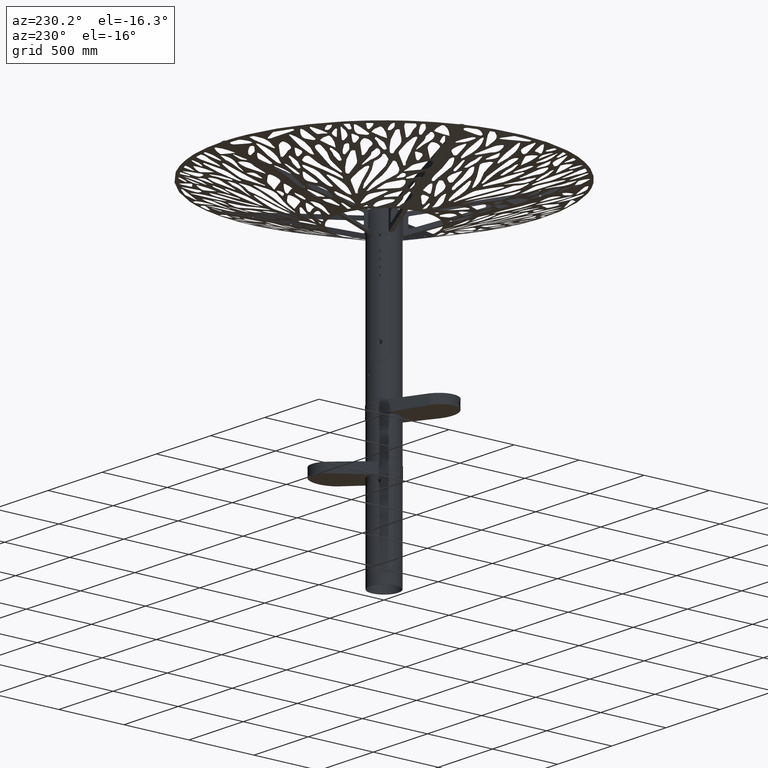
[diagram: clean part render]
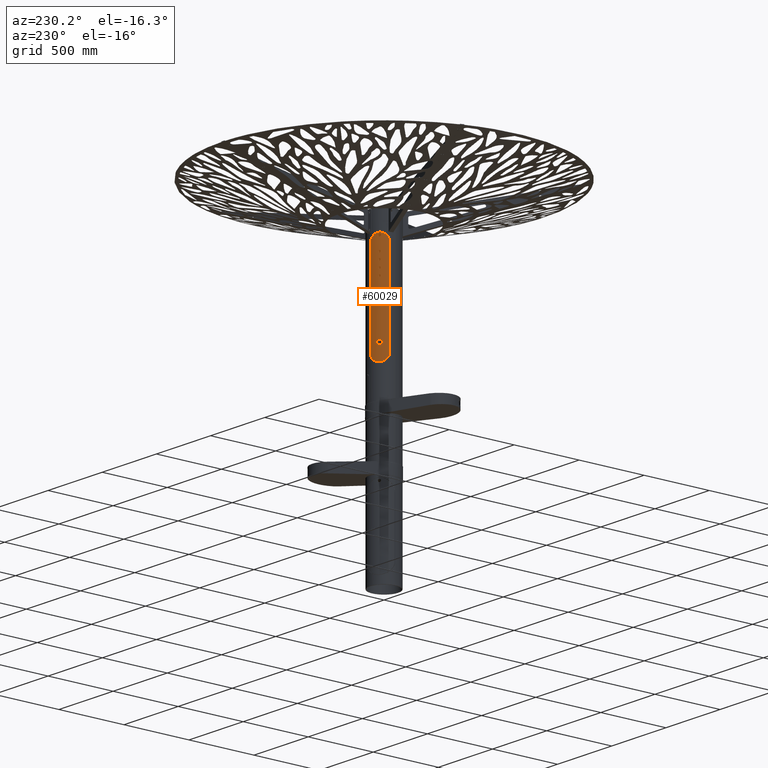
[diagram: same view with one face highlighted and labeled with its STEP entity id]
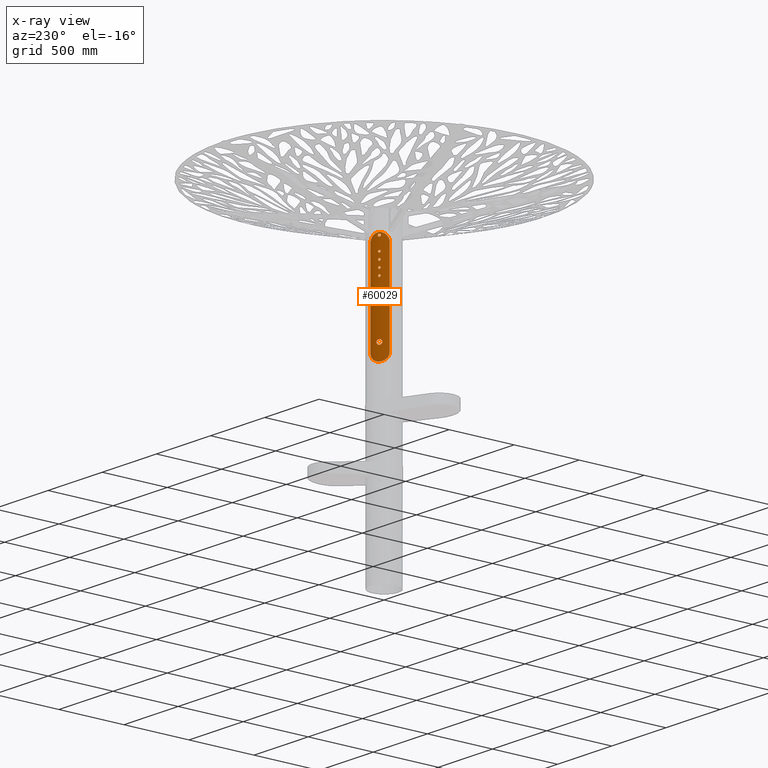
[diagram: x-ray of the same camera — body ghosted, the highlighted face saturated]
A machine part, auxiliary view. The second image highlights one B-rep face of the part: STEP entity #60029.
The next image is the same camera in x-ray: the body ghosted, the highlighted face saturated — about 0% of this face is hidden behind the body in this view.
In plain terms, the highlighted cylindrical surface (edge-blend (fillet) strip) has radius 109.55 mm, axis along (-0, -0, 1).
Its self-contained STEP definition (entity closure, byte-faithful):
#208 = CARTESIAN_POINT ( 'NONE',  ( -2.068872892737632085, -109.5307511698271838, 1892.267683150573021 ) ) ;
#669 = CARTESIAN_POINT ( 'NONE',  ( -0.5286549071183413995, -109.5500000000000114, 1892.000000000000909 ) ) ;
#740 = CARTESIAN_POINT ( 'NONE',  ( 6.364308584506964905, -109.3653606099847906, 1945.124844183423875 ) ) ;
#767 = CARTESIAN_POINT ( 'NONE',  ( -7.729917473456499266, -109.2769724355717784, 1947.922292748879954 ) ) ;
#1203 = CARTESIAN_POINT ( 'NONE',  ( 6.795544112736378040, -109.3391262888995499, 1954.229625215597935 ) ) ;
#1229 = CARTESIAN_POINT ( 'NONE',  ( -7.180137621116314151, -109.3145164233716571, 1953.537598884971658 ) ) ;
#1408 = CARTESIAN_POINT ( 'NONE',  ( -1.307019251254304284E-14, -109.5500000000000114, 1474.500000000000000 ) ) ;
#1445 = CARTESIAN_POINT ( 'NONE',  ( 56.45340360417230130, -93.88464715803591787, 1413.526084720628660 ) ) ;
#1667 = CARTESIAN_POINT ( 'NONE',  ( -1.299671370459436678E-14, -109.5500000000000114, 1958.000000000000000 ) ) ;
#1676 = B_SPLINE_CURVE_WITH_KNOTS ( 'NONE', 3,
 ( #33351, #47955, #55938, #11345, #34280, #47491, #83232, #69567, #41343, #11789, #39954, #91683, #76146, #68652, #77080, #32897, #5197, #76616, #27246, #63440, #4283, #27703, #84618, #61606, #92145, #40416, #62049, #33818, #62511, #90751, #91210, #20222, #69106, #48886, #4740, #26336, #26788, #70029, #55483, #84157, #56404, #19757, #12726, #77553, #5671, #13183, #41808 ),
 .UNSPECIFIED., .F., .F.,
 ( 4, 2, 2, 2, 2, 2, 2, 2, 2, 1, 2, 2, 2, 2, 2, 2, 2, 2, 2, 2, 2, 2, 2, 4 ),
 ( 0.03127399438757747646, 0.03322862219002499506, 0.03420593609124861906, 0.03518324999247224999, 0.03713787779491900531, 0.03811519169614237951, 0.03909250559736576064, 0.04104713339981345271, 0.04202444730103785386, 0.04300176120226224807, 0.04397907510348664228, 0.04495638900471104343, 0.04691101680715854122, 0.04788833070838229011, 0.04886564460960604594, 0.05082027241205223922, 0.05179758631327534280, 0.05277490021449844637, 0.05472952801694574987, 0.05668415581939305337, 0.05766146972061669818, 0.05863878362184035686, 0.06059341142428715382, 0.06254803922673395078 ),
 .UNSPECIFIED. ) ;
#1822 = FACE_OUTER_BOUND ( 'NONE', #74092, .T. ) ;
#1871 = CARTESIAN_POINT ( 'NONE',  ( -3.975354607867367829, -109.4792794551611195, 1474.947955198995032 ) ) ;
#2007 = CARTESIAN_POINT ( 'NONE',  ( -7.948499502516371606, -109.2613120296376081, 2001.046410198630383 ) ) ;
#2130 = CARTESIAN_POINT ( 'NONE',  ( 4.007158968729370940, -109.4775523381361069, 1956.943765464385706 ) ) ;
#2135 = CARTESIAN_POINT ( 'NONE',  ( 7.401492366807461032, -109.2998177693032886, 1903.069382895245326 ) ) ;
#2287 = CARTESIAN_POINT ( 'NONE',  ( 0.000000000000000000, 0.000000000000000000, 0.000000000000000000 ) ) ;
#2336 = CARTESIAN_POINT ( 'NONE',  ( -11.54846880208347137, -108.9405123143592107, 1478.838922302180890 ) ) ;
#2470 = CARTESIAN_POINT ( 'NONE',  ( -6.798312147696000451, -109.3389521543909666, 2004.225025910117893 ) ) ;
#2592 = CARTESIAN_POINT ( 'NONE',  ( 2.571500109574073267, -109.5201035155618001, 1907.579996444109838 ) ) ;
#2801 = CARTESIAN_POINT ( 'NONE',  ( -17.27541660969368920, -108.1793661722975344, 1494.852654696574064 ) ) ;
#2825 = CARTESIAN_POINT ( 'NONE',  ( -29.73041385885469978, -105.4905049924545892, 2160.872680870194472 ) ) ;
#2931 = CARTESIAN_POINT ( 'NONE',  ( 6.931689742192295611, -109.3305513943999898, 2004.002522217572505 ) ) ;
#3066 = CARTESIAN_POINT ( 'NONE',  ( 7.948499502516387594, -109.2613120296375939, 1898.953589801370526 ) ) ;
#3246 = EDGE_LOOP ( 'NONE', ( #14357, #55392 ) ) ;
#3264 = CARTESIAN_POINT ( 'NONE',  ( -16.60981457543951834, -108.2844090766303111, 1497.628586999367599 ) ) ;
#3288 = CARTESIAN_POINT ( 'NONE',  ( -52.73313782213233480, -96.03799718236936656, 2136.289458159742026 ) ) ;
#3302 = CARTESIAN_POINT ( 'NONE',  ( -1.815370652223388559, -109.5352559499902014, 1942.204336773963860 ) ) ;
#3385 = CARTESIAN_POINT ( 'NONE',  ( 1.815370652223335712, -109.5352559499902156, 2007.795663226035686 ) ) ;
#3394 = CARTESIAN_POINT ( 'NONE',  ( -2.821272250157546679, -109.5139334151888875, 1992.509396356958632 ) ) ;
#3514 = CARTESIAN_POINT ( 'NONE',  ( 4.883525341584346258, -109.4419545415967292, 1893.642122107911518 ) ) ;
#3540 = CARTESIAN_POINT ( 'NONE',  ( 44.18607081860528041, -100.2523359372416820, 2148.840586496788092 ) ) ;
#4190 = CARTESIAN_POINT ( 'NONE',  ( -58.79999999999999716, -92.43247535363315137, 2110.000000000000000 ) ) ;
#4283 = CARTESIAN_POINT ( 'NONE',  ( -9.662284529823860879, -109.1231043142876018, 2147.402443738030797 ) ) ;
#4293 = CARTESIAN_POINT ( 'NONE',  ( 2.082796233083969550, -109.5313982431147508, 1992.258218988333283 ) ) ;
#4496 = CARTESIAN_POINT ( 'NONE',  ( 1.156246492327880571, -109.5454102807516250, 1474.528663284997947 ) ) ;
#4514 = CARTESIAN_POINT ( 'NONE',  ( 4.435106804247603840, -109.4618621102411993, 2158.986617712410862 ) ) ;
#4680 = CARTESIAN_POINT ( 'NONE',  ( -6.798312147696000451, -109.3389521543909950, 2054.225025910118347 ) ) ;
#4740 = CARTESIAN_POINT ( 'NONE',  ( -7.955291507959828756, -109.2613718138207588, 2156.094057405923195 ) ) ;
#4963 = CARTESIAN_POINT ( 'NONE',  ( 8.664434982178466527, -109.2069320610248440, 2155.003456060881035 ) ) ;
#5097 = CARTESIAN_POINT ( 'NONE',  ( 15.70392550581551916, -108.4189274671250303, 1484.256241515967076 ) ) ;
#5137 = CARTESIAN_POINT ( 'NONE',  ( -6.364308584506875199, -109.3653606099848048, 2054.875155816576353 ) ) ;
#5175 = VERTEX_POINT ( 'NONE', #82937 ) ;
#5197 = CARTESIAN_POINT ( 'NONE',  ( -8.664434982178306655, -109.2069320610248440, 2144.996543939118510 ) ) ;
#5566 = CARTESIAN_POINT ( 'NONE',  ( 17.47293808061063203, -108.1475944745908038, 1490.868541034227064 ) ) ;
#5611 = CARTESIAN_POINT ( 'NONE',  ( -7.401492330491600491, -109.2998174617979004, 2046.930617111275978 ) ) ;
#5671 = CARTESIAN_POINT ( 'NONE',  ( -1.322473155812293077, -109.5438922094107568, 2159.933687644129805 ) ) ;
#5700 = CARTESIAN_POINT ( 'NONE',  ( -48.27653327615415435, -98.34088988028908318, 1396.418413429089014 ) ) ;
#5805 = CARTESIAN_POINT ( 'NONE',  ( 7.577597027034801869, -109.2876404362681484, 2052.578471419984908 ) ) ;
#5897 = CARTESIAN_POINT ( 'NONE',  ( 7.955291507959987740, -109.2613718138207446, 2143.905942594076350 ) ) ;
#6069 = CARTESIAN_POINT ( 'NONE',  ( -4.010349722868856936, -109.4768155799206113, 2056.927189231789271 ) ) ;
#6163 = CARTESIAN_POINT ( 'NONE',  ( -19.26528303679814513, -107.8592881358860893, 1374.411262592808725 ) ) ;
#6270 = CARTESIAN_POINT ( 'NONE',  ( 7.948499502516358284, -109.2613120296376508, 2048.953589801370072 ) ) ;
#6293 = B_SPLINE_CURVE_WITH_KNOTS ( 'NONE', 3,
 ( #57066, #669, #42935, #7256, #208, #13362, #85741, #41519, #21338, #70209, #13828, #36343, #84810, #86212, #49993, #49072, #27888, #64104, #78209, #12902, #14300, #92333, #35874, #14765, #20398, #35412, #21815, #71617, #6793, #42464, #65037, #77739, #6311, #71145, #28354, #78672, #55660, #41996, #79141, #34937, #70678, #64575, #63154 ),
 .UNSPECIFIED., .F., .F.,
 ( 4, 2, 2, 2, 2, 2, 2, 2, 1, 2, 2, 2, 2, 2, 2, 2, 2, 2, 2, 2, 2, 4 ),
 ( 0.02501462296406650743, 0.02657803882077278482, 0.02735974674912592178, 0.02814145467747906221, 0.02970487053418508633, 0.03126828639089111045, 0.03283170224759712763, 0.03361341017595014663, 0.03439511810430315869, 0.03517682603265616381, 0.03595853396100917587, 0.03752194981771456161, 0.03908536567441994042, 0.04064878153112531922, 0.04143048945947831740, 0.04221219738783130865, 0.04377561324453674296, 0.04533902910124218422, 0.04612073702959489790, 0.04690244495794761159, 0.04846586081465305285, 0.05002927667135848716 ),
 .UNSPECIFIED. ) ;
#6311 = CARTESIAN_POINT ( 'NONE',  ( -5.287755800865171274, -109.4229487171342754, 1906.026476694735493 ) ) ;
#6361 = CARTESIAN_POINT ( 'NONE',  ( 9.999538337287031453, -109.0926749752418630, 2150.659495926059662 ) ) ;
#6535 = CARTESIAN_POINT ( 'NONE',  ( -7.593636865582373829, -109.2866846208429195, 2052.571256877372434 ) ) ;
#6634 = CARTESIAN_POINT ( 'NONE',  ( -42.95207953916403909, -100.7887900298122048, 1389.799377670467948 ) ) ;
#6699 = VERTEX_POINT ( 'NONE', #50703 ) ;
#6793 = CARTESIAN_POINT ( 'NONE',  ( -6.932643504299831783, -109.3304913149851956, 1904.000929413450876 ) ) ;
#7106 = CARTESIAN_POINT ( 'NONE',  ( 15.40733663218379412, -108.4774819043851721, 1373.221131280967484 ) ) ;
#7256 = CARTESIAN_POINT ( 'NONE',  ( -1.815370652223388337, -109.5352559499902299, 1892.204336773965224 ) ) ;
#7261 = EDGE_LOOP ( 'NONE', ( #66275, #85637 ) ) ;
#7573 = CARTESIAN_POINT ( 'NONE',  ( -7.902315589734930867, -109.3320362624550626, 1371.603376054137016 ) ) ;
#7788 = CARTESIAN_POINT ( 'NONE',  ( 2.581360709703115930, -109.5206554324889794, 1942.409763774676321 ) ) ;
#8016 = CARTESIAN_POINT ( 'NONE',  ( -1.968158959371956174, -109.5367932777020314, 2168.775406012173335 ) ) ;
#8251 = CARTESIAN_POINT ( 'NONE',  ( 4.234138293781648521, -109.4683584709336799, 1943.207362024051918 ) ) ;
#8454 = CARTESIAN_POINT ( 'NONE',  ( -2.307309885391656490, -109.5272118727670119, 1509.356867046006982 ) ) ;
#8493 = CARTESIAN_POINT ( 'NONE',  ( 50.92225375794441078, -97.02463370097386530, 1400.353476005578614 ) ) ;
#8709 = CARTESIAN_POINT ( 'NONE',  ( 6.033931905349095182, -109.3843395241008807, 1944.720753034439440 ) ) ;
#8734 = CARTESIAN_POINT ( 'NONE',  ( -7.293363606144660061, -109.3069961684706328, 1953.297805027970981 ) ) ;
#8736 = B_SPLINE_CURVE_WITH_KNOTS ( 'NONE', 3,
 ( #60248, #23596, #24518, #10901, #24978, #23134, #3394, #59320, #59784, #45205, #9516, #39512, #60713, #89409, #17480, #66371, #75250, #66835, #52265, #37666, #16092, #46137, #51804, #2007, #67755, #44745, #74795, #82337, #68220, #2470, #10445, #80483, #80944, #39061, #73405, #32002, #24061, #9058, #52743, #88006, #16558, #81411, #17011 ),
 .UNSPECIFIED., .F., .F.,
 ( 4, 2, 2, 2, 2, 2, 2, 2, 1, 2, 2, 2, 2, 2, 2, 2, 2, 2, 2, 2, 2, 4 ),
 ( 0.02501462296406616742, 0.02657803882077215685, 0.02735974674912515503, 0.02814145467747814974, 0.02970487053418388590, 0.03126828639088962553, 0.03283170224759536515, 0.03361341017594823843, 0.03439511810430110478, 0.03517682603265397806, 0.03595853396100684440, 0.03752194981771193871, 0.03908536567441703302, 0.04064878153112212733, 0.04143048945947529205, 0.04221219738782844288, 0.04377561324453476538, 0.04533902910124108787, 0.04612073702959387095, 0.04690244495794666096, 0.04846586081465223406, 0.05002927667135781409 ),
 .UNSPECIFIED. ) ;
#8964 = CARTESIAN_POINT ( 'NONE',  ( 33.62715662663097760, -104.2645806172999698, 1381.755191104365394 ) ) ;
#9053 = CARTESIAN_POINT ( 'NONE',  ( 4.010349722868810751, -109.4768155799205971, 1993.072810768210957 ) ) ;
#9058 = CARTESIAN_POINT ( 'NONE',  ( -3.308056932641795456, -109.5003104182782465, 2007.288726678773628 ) ) ;
#9144 = EDGE_CURVE ( 'NONE', #48802, #51815, #41941, .T. ) ;
#9178 = CARTESIAN_POINT ( 'NONE',  ( 7.593636865582350737, -109.2866846208429195, 1947.428743122627793 ) ) ;
#9183 = CARTESIAN_POINT ( 'NONE',  ( 1.057735730991005596, -109.5460927480471440, 1892.053025197944180 ) ) ;
#9334 = FACE_BOUND ( 'NONE', #3246, .T. ) ;
#9382 = CARTESIAN_POINT ( 'NONE',  ( -16.38121205727340168, -108.3185447973019393, 1485.816927795159472 ) ) ;
#9516 = CARTESIAN_POINT ( 'NONE',  ( -5.288115950171569324, -109.4229168942128467, 1993.974393261943078 ) ) ;
#9640 = CARTESIAN_POINT ( 'NONE',  ( 7.794437585414392800, -109.2723748285179113, 1951.820997318388208 ) ) ;
#9647 = CARTESIAN_POINT ( 'NONE',  ( 3.547788634155592646, -109.4927817265915309, 1892.824900602773596 ) ) ;
#9720 = CARTESIAN_POINT ( 'NONE',  ( 2.307309885391654269, -109.5272118727670545, 1474.643132953992790 ) ) ;
#9855 = CARTESIAN_POINT ( 'NONE',  ( -17.47293808061065334, -108.1475944745908464, 1493.131458965772936 ) ) ;
#10136 = CARTESIAN_POINT ( 'NONE',  ( 3.937019984607837753, -109.5500000000000114, 2168.800000000000182 ) ) ;
#10317 = CARTESIAN_POINT ( 'NONE',  ( -10.19540193055861543, -109.0755878671803742, 1477.765172316521330 ) ) ;
#10445 = CARTESIAN_POINT ( 'NONE',  ( -6.364308584506876976, -109.3653606099848048, 2004.875155816576807 ) ) ;
#10567 = CARTESIAN_POINT ( 'NONE',  ( 4.007158968729362947, -109.4775523381360927, 2056.943765464385251 ) ) ;
#10799 = CARTESIAN_POINT ( 'NONE',  ( -36.72864690854083847, -103.2124669179420806, 2155.927602834427489 ) ) ;
#10896 = CARTESIAN_POINT ( 'NONE',  ( 6.364308584506964905, -109.3653606099848190, 1995.124844183423875 ) ) ;
#10901 = CARTESIAN_POINT ( 'NONE',  ( -1.815370652223390335, -109.5352559499902299, 1992.204336773964087 ) ) ;
#11255 = CARTESIAN_POINT ( 'NONE',  ( -44.22595884369737007, -100.2346947639459671, 2148.794983482940552 ) ) ;
#11345 = CARTESIAN_POINT ( 'NONE',  ( -2.269569667534867108, -109.5269543383940629, 2140.255502496787813 ) ) ;
#11546 = CARTESIAN_POINT ( 'NONE',  ( 0.5789885709977631301, -109.5499999999999829, 1474.499999999999545 ) ) ;
#11563 = CARTESIAN_POINT ( 'NONE',  ( 4.435071364056611287, -109.4605700341589767, 2141.031290328347950 ) ) ;
#11789 = CARTESIAN_POINT ( 'NONE',  ( -5.824318681042321089, -109.3954012202307808, 2141.864643995837014 ) ) ;
#12021 = CARTESIAN_POINT ( 'NONE',  ( 3.527042214320275093, -109.4936263234990008, 2159.363083935697887 ) ) ;
#12156 = CARTESIAN_POINT ( 'NONE',  ( 16.94040031838618177, -108.2325111737082040, 1487.463099243064335 ) ) ;
#12198 = CARTESIAN_POINT ( 'NONE',  ( -6.932643504299806914, -109.3304913149852098, 2054.000929413450649 ) ) ;
#12487 = CARTESIAN_POINT ( 'NONE',  ( 6.840734947948382327, -109.3364540650338910, 2157.301410104547358 ) ) ;
#12646 = CARTESIAN_POINT ( 'NONE',  ( -6.025810189145818896, -109.3847728136995272, 1944.712115883591650 ) ) ;
#12726 = CARTESIAN_POINT ( 'NONE',  ( -3.227265397514857970, -109.5041290329459684, 2159.487594313764930 ) ) ;
#12902 = CARTESIAN_POINT ( 'NONE',  ( -7.794437585414405234, -109.2723748285178971, 1898.179002681612246 ) ) ;
#12951 = CARTESIAN_POINT ( 'NONE',  ( 3.214827658929884535, -109.5032700730477586, 2159.474843279323522 ) ) ;
#13078 = CARTESIAN_POINT ( 'NONE',  ( 15.94443209822513374, -108.3836996071621286, 1499.235300644804965 ) ) ;
#13183 = CARTESIAN_POINT ( 'NONE',  ( -0.6609500540144914726, -109.5499999999999829, 2159.999999999999091 ) ) ;
#13194 = LINE ( 'NONE', #13660, #81199 ) ;
#13214 = CARTESIAN_POINT ( 'NONE',  ( -21.07951918404420155, -107.5179760905614472, 1375.074913380148928 ) ) ;
#13323 = CARTESIAN_POINT ( 'NONE',  ( 7.180137621116275959, -109.3145164233716571, 2046.462401115028797 ) ) ;
#13362 = CARTESIAN_POINT ( 'NONE',  ( -2.571500109574086590, -109.5201035155618001, 1892.420003555891753 ) ) ;
#13410 = CARTESIAN_POINT ( 'NONE',  ( 8.497734930137490039, -109.2200708865398298, 2144.718470797396549 ) ) ;
#13589 = CARTESIAN_POINT ( 'NONE',  ( -7.948705966986622684, -109.2612978377912327, 2048.953468836403317 ) ) ;
#13660 = CARTESIAN_POINT ( 'NONE',  ( 58.79999999999999716, -92.43247535363316558, 0.000000000000000000 ) ) ;
#13828 = CARTESIAN_POINT ( 'NONE',  ( -5.288115950171568436, -109.4229168942128325, 1893.974393261943760 ) ) ;
#14136 = VERTEX_POINT ( 'NONE', #39382 ) ;
#14140 = CARTESIAN_POINT ( 'NONE',  ( 1.872819586430045868, -109.5384716438058916, 1371.221467088162854 ) ) ;
#14300 = CARTESIAN_POINT ( 'NONE',  ( -7.948705966986682192, -109.2612978377911901, 1898.953468836404681 ) ) ;
#14357 = ORIENTED_EDGE ( 'NONE', *, *, #70173, .T. ) ;
#14396 = CARTESIAN_POINT ( 'NONE',  ( -7.948705966986682192, -109.2612978377911901, 1948.953468836403772 ) ) ;
#14402 = EDGE_CURVE ( 'NONE', #85184, #48802, #13194, .T. ) ;
#14615 = CARTESIAN_POINT ( 'NONE',  ( 3.853781585738613735, -109.4866776861624089, 1371.318045772480900 ) ) ;
#14765 = CARTESIAN_POINT ( 'NONE',  ( -7.948499502516400916, -109.2613120296376508, 1901.046410198631065 ) ) ;
#14866 = CARTESIAN_POINT ( 'NONE',  ( 52.72255301493333945, -96.04404645721353972, 2136.315109527496134 ) ) ;
#15295 = CARTESIAN_POINT ( 'NONE',  ( 1.815370652223369907, -109.5352559499902014, 1957.795663226035913 ) ) ;
#15345 = VERTEX_POINT ( 'NONE', #46596 ) ;
#15502 = CARTESIAN_POINT ( 'NONE',  ( -8.777195556678993427, -109.1989977795442996, 1507.150606137623754 ) ) ;
#15753 = CARTESIAN_POINT ( 'NONE',  ( 1.057735730991007594, -109.5460927480471156, 1942.053025197942816 ) ) ;
#15780 = CARTESIAN_POINT ( 'NONE',  ( -7.948499502516400916, -109.2613120296376508, 1951.046410198629928 ) ) ;
#15785 = CARTESIAN_POINT ( 'NONE',  ( 35.92297845110952892, -103.4958815311937883, 2156.560654820802029 ) ) ;
#15958 = CARTESIAN_POINT ( 'NONE',  ( -4.795762005399353030E-15, -109.5500000000000114, 1509.500000000000000 ) ) ;
#16092 = CARTESIAN_POINT ( 'NONE',  ( -7.948705966986682192, -109.2612978377911901, 1998.953468836404227 ) ) ;
#16219 = CARTESIAN_POINT ( 'NONE',  ( 6.364308584506964017, -109.3653606099847906, 1895.124844183424557 ) ) ;
#16421 = CARTESIAN_POINT ( 'NONE',  ( -6.176896469065162876, -109.3770081916189696, 1475.616330153034596 ) ) ;
#16463 = CARTESIAN_POINT ( 'NONE',  ( 54.93689270719112017, -94.78323999959172852, 1408.952320572797817 ) ) ;
#16523 = VERTEX_POINT ( 'NONE', #48830 ) ;
#16539 = EDGE_CURVE ( 'NONE', #5175, #45715, #85497, .T. ) ;
#16553 = CARTESIAN_POINT ( 'NONE',  ( 6.795544112736452647, -109.3391262888995072, 2004.229625215597025 ) ) ;
#16558 = CARTESIAN_POINT ( 'NONE',  ( -1.057735730991010259, -109.5460927480471440, 2007.946974802056957 ) ) ;
#16677 = CARTESIAN_POINT ( 'NONE',  ( 7.180137621116299940, -109.3145164233716571, 1946.462401115029024 ) ) ;
#16879 = CARTESIAN_POINT ( 'NONE',  ( -13.90408399176001275, -108.6659813236482677, 1481.311249719496118 ) ) ;
#17006 = CARTESIAN_POINT ( 'NONE',  ( 5.288115950171365043, -109.4229168942128609, 2006.025606738056467 ) ) ;
#17011 = CARTESIAN_POINT ( 'NONE',  ( -1.299671370459419955E-14, -109.5500000000000114, 2008.000000000000000 ) ) ;
#17165 = CARTESIAN_POINT ( 'NONE',  ( 46.56907357228682542, -99.16107505763348229, 2145.911862370185645 ) ) ;
#17346 = CARTESIAN_POINT ( 'NONE',  ( -5.630534682843038929, -109.4065941986872730, 1475.420568336110364 ) ) ;
#17372 = CARTESIAN_POINT ( 'NONE',  ( -46.01975093785547699, -99.41738663902913231, 2146.612963119491724 ) ) ;
#17480 = CARTESIAN_POINT ( 'NONE',  ( -6.931689742192315151, -109.3305513944000040, 1995.997477782427495 ) ) ;
#17601 = CARTESIAN_POINT ( 'NONE',  ( 2.571500109574011539, -109.5201035155618143, 2057.579996444108019 ) ) ;
#17670 = CARTESIAN_POINT ( 'NONE',  ( 11.56740630464038944, -108.9406698719937054, 1478.817684684350979 ) ) ;
#17829 = CARTESIAN_POINT ( 'NONE',  ( -21.02671637247558323, -107.5172053830860222, 2164.920569662234811 ) ) ;
#17927 = CARTESIAN_POINT ( 'NONE',  ( 7.794437585414286218, -109.2723748285178971, 2001.820997318387754 ) ) ;
#18053 = CARTESIAN_POINT ( 'NONE',  ( 6.932643504299816684, -109.3304913149851672, 1895.999070586550488 ) ) ;
#18126 = CARTESIAN_POINT ( 'NONE',  ( 14.23704834627502436, -108.6214101955414151, 1481.807811853793510 ) ) ;
#18277 = CARTESIAN_POINT ( 'NONE',  ( -35.97974327732801214, -103.4761427736545443, 2156.516760925205745 ) ) ;
#18596 = CARTESIAN_POINT ( 'NONE',  ( 9.984534114369267854, -109.0940540001776071, 2149.353704015852145 ) ) ;
#18750 = CARTESIAN_POINT ( 'NONE',  ( -4.876590402809767966, -109.4422708782727085, 1943.636662206963820 ) ) ;
#18836 = CARTESIAN_POINT ( 'NONE',  ( 1.057735730990999157, -109.5460927480471156, 1992.053025197942588 ) ) ;
#19050 = CARTESIAN_POINT ( 'NONE',  ( 7.532167575402322512, -109.2917303376126057, 2156.609949181917727 ) ) ;
#19188 = CARTESIAN_POINT ( 'NONE',  ( 17.04936210527886331, -108.2152242625136296, 1495.987607445122194 ) ) ;
#19230 = CARTESIAN_POINT ( 'NONE',  ( -6.931689742192311599, -109.3305513943999898, 2045.997477782426813 ) ) ;
#19428 = CARTESIAN_POINT ( 'NONE',  ( 4.010349722868842726, -109.4768155799206255, 2043.072810768211184 ) ) ;
#19523 = CARTESIAN_POINT ( 'NONE',  ( 0.6609489877638918820, -109.5500000000000114, 2159.999999999999091 ) ) ;
#19701 = CARTESIAN_POINT ( 'NONE',  ( -2.571500109574031967, -109.5201035155618143, 2042.420003555890162 ) ) ;
#19757 = CARTESIAN_POINT ( 'NONE',  ( -4.135438256507931065, -109.4723362531791935, 2159.110739398026453 ) ) ;
#20157 = CARTESIAN_POINT ( 'NONE',  ( -2.082796233083974879, -109.5313982431148077, 2057.741781011666262 ) ) ;
#20222 = CARTESIAN_POINT ( 'NONE',  ( -8.974944414845252183, -109.1818526519499954, 2154.422454813807690 ) ) ;
#20255 = CARTESIAN_POINT ( 'NONE',  ( -58.40236394028492128, -92.68864810865775894, 1422.146736584279324 ) ) ;
#20360 = CARTESIAN_POINT ( 'NONE',  ( 6.931689742192296499, -109.3305513943999898, 2054.002522217572277 ) ) ;
#20398 = CARTESIAN_POINT ( 'NONE',  ( -7.744566521610057208, -109.2759563681402568, 1902.072512493969498 ) ) ;
#20585 = EDGE_LOOP ( 'NONE', ( #74427, #77631 ) ) ;
#20621 = CARTESIAN_POINT ( 'NONE',  ( -3.547763504213026664, -109.4936099999535628, 2042.810545618422339 ) ) ;
#20716 = CARTESIAN_POINT ( 'NONE',  ( 0.8861256815626711303, -109.5508264550198163, 1371.198460234061713 ) ) ;
#20823 = CARTESIAN_POINT ( 'NONE',  ( 6.932643504299791815, -109.3304913149851814, 2045.999070586549578 ) ) ;
#21187 = CARTESIAN_POINT ( 'NONE',  ( -58.80000000000001847, -92.43247535363319400, 1426.030325004186125 ) ) ;
#21338 = CARTESIAN_POINT ( 'NONE',  ( -4.007158968729386928, -109.4775523381360927, 1893.056234535615431 ) ) ;
#21431 = CARTESIAN_POINT ( 'NONE',  ( -6.932643504299830894, -109.3304913149851956, 1954.000929413449967 ) ) ;
#21501 = EDGE_CURVE ( 'NONE', #68523, #38903, #24504, .T. ) ;
#21659 = CARTESIAN_POINT ( 'NONE',  ( -38.90505578867200853, -102.4207763758921459, 1385.870346050872513 ) ) ;
#21815 = CARTESIAN_POINT ( 'NONE',  ( -7.293363606144660949, -109.3069961684705902, 1903.297805027971663 ) ) ;
#21916 = CARTESIAN_POINT ( 'NONE',  ( 54.57997457885760184, -94.98637598223888290, 2131.894883228445451 ) ) ;
#22345 = CARTESIAN_POINT ( 'NONE',  ( 0.5286549071183308524, -109.5500000000000398, 1958.000000000000227 ) ) ;
#22373 = CARTESIAN_POINT ( 'NONE',  ( -8.000360046407905656, -109.2574790998747574, 1950.516311602402766 ) ) ;
#22785 = EDGE_CURVE ( 'NONE', #6699, #16523, #78279, .T. ) ;
#22802 = CARTESIAN_POINT ( 'NONE',  ( 2.821272250157529360, -109.5139334151888875, 1957.490603643041595 ) ) ;
#22832 = CARTESIAN_POINT ( 'NONE',  ( -6.938893903906698263E-15, -109.5500000000000114, 2168.800000000000182 ) ) ;
#23002 = CARTESIAN_POINT ( 'NONE',  ( -5.653464191532498795, -109.4091630776418356, 1508.601246488657807 ) ) ;
#23041 = CARTESIAN_POINT ( 'NONE',  ( 46.57775319231181044, -99.15699200228303312, 1394.099429525731011 ) ) ;
#23134 = CARTESIAN_POINT ( 'NONE',  ( -2.571500109574092807, -109.5201035155618285, 1992.420003555891299 ) ) ;
#23258 = CARTESIAN_POINT ( 'NONE',  ( 6.356903927679605992, -109.3657995082855621, 1954.885321838375376 ) ) ;
#23466 = CARTESIAN_POINT ( 'NONE',  ( -17.38732619686640390, -108.1616171719705903, 1489.706981671028643 ) ) ;
#23591 = CARTESIAN_POINT ( 'NONE',  ( 4.007158968729363835, -109.4775523381361069, 2006.943765464386161 ) ) ;
#23596 = CARTESIAN_POINT ( 'NONE',  ( -0.5286549071183457293, -109.5500000000000540, 1992.000000000000227 ) ) ;
#23712 = CARTESIAN_POINT ( 'NONE',  ( 7.744566521610042997, -109.2759563681402568, 1947.927487506030729 ) ) ;
#23923 = CARTESIAN_POINT ( 'NONE',  ( -15.94443209822514440, -108.3836996071621286, 1484.764699355195262 ) ) ;
#24061 = CARTESIAN_POINT ( 'NONE',  ( -3.547788634155649490, -109.4927817265915166, 2007.175099397226631 ) ) ;
#24209 = CARTESIAN_POINT ( 'NONE',  ( 29.65991991097506997, -105.5104996897006657, 2160.914030854371958 ) ) ;
#24254 = CARTESIAN_POINT ( 'NONE',  ( 2.878685107502386931, -109.5136118288870222, 1474.728895977202228 ) ) ;
#24388 = CARTESIAN_POINT ( 'NONE',  ( -1.157977719495485447, -109.5500000000000398, 1474.500000000000227 ) ) ;
#24411 = CARTESIAN_POINT ( 'NONE',  ( -57.42771682661254573, -93.29154498908761184, 2122.667110287271953 ) ) ;
#24504 = B_SPLINE_CURVE_WITH_KNOTS ( 'NONE', 3,
 ( #53334, #66497, #88603, #24645, #89530, #2592, #44869, #59913, #52865, #32578, #67876, #81537, #61281, #45331, #89985, #67419, #2135, #74919, #39181, #25564, #46260, #45804, #74462, #3066, #31663, #38259, #54234, #60371, #18053, #89062, #16219, #73530, #82001, #3514, #81073, #46717, #9647, #32124, #25100, #53783, #9183, #75367, #82457 ),
 .UNSPECIFIED., .F., .F.,
 ( 4, 2, 2, 2, 2, 2, 2, 2, 1, 2, 2, 2, 2, 2, 2, 2, 2, 2, 2, 2, 2, 4 ),
 ( 0.000000000000000000, 0.001563413935254685371, 0.002345120902882027840, 0.003126827870509370742, 0.004690241805763802410, 0.006253655741018234945, 0.007817069676272665746, 0.008598776643899882013, 0.009380483611527098281, 0.01016219057915431455, 0.01094389754678153082, 0.01250731148203531630, 0.01407072541728910525, 0.01563413935254289247, 0.01641584632017008966, 0.01719755328779728684, 0.01876096722305112957, 0.02032438115830497577, 0.02110608812593189540, 0.02188779509355881503, 0.02345120902881266470, 0.02501462296406650743 ),
 .UNSPECIFIED. ) ;
#24513 = CARTESIAN_POINT ( 'NONE',  ( 8.000360046407935855, -109.2574790998747716, 1999.483688397598826 ) ) ;
#24518 = CARTESIAN_POINT ( 'NONE',  ( -1.048441411809837964, -109.5461762780667669, 1992.051886163316112 ) ) ;
#24644 = CARTESIAN_POINT ( 'NONE',  ( 1.048441411809794888, -109.5461762780667812, 2057.948113836683660 ) ) ;
#24645 = CARTESIAN_POINT ( 'NONE',  ( 1.815370652223370129, -109.5352559499902299, 1907.795663226037050 ) ) ;
#24669 = CARTESIAN_POINT ( 'NONE',  ( 13.54435297773608760, -108.7136986650519930, 2167.227160696372721 ) ) ;
#24847 = CARTESIAN_POINT ( 'NONE',  ( -10.68602611798953106, -109.0317103547916133, 1505.905252498669597 ) ) ;
#24872 = CARTESIAN_POINT ( 'NONE',  ( -48.28204504175875655, -98.33818486287944438, 2143.573674885924447 ) ) ;
#24888 = CARTESIAN_POINT ( 'NONE',  ( -2.068872892737632530, -109.5307511698272123, 1942.267683150572793 ) ) ;
#24972 = CARTESIAN_POINT ( 'NONE',  ( 7.593636865582349849, -109.2866846208429337, 1997.428743122628021 ) ) ;
#24978 = CARTESIAN_POINT ( 'NONE',  ( -2.068872892737636526, -109.5307511698271981, 1992.267683150572338 ) ) ;
#25097 = CARTESIAN_POINT ( 'NONE',  ( 1.815370652223335712, -109.5352559499902156, 2057.795663226035231 ) ) ;
#25100 = CARTESIAN_POINT ( 'NONE',  ( 2.581360709703111045, -109.5206554324889652, 1892.409763774677003 ) ) ;
#25331 = CARTESIAN_POINT ( 'NONE',  ( -42.96525061719795247, -100.7831646168272925, 2150.186520716871200 ) ) ;
#25437 = CARTESIAN_POINT ( 'NONE',  ( 7.293363606144644962, -109.3069961684705760, 1996.702194972030156 ) ) ;
#25562 = CARTESIAN_POINT ( 'NONE',  ( -1.299671370459419955E-14, -109.5500000000000114, 2058.000000000000000 ) ) ;
#25564 = CARTESIAN_POINT ( 'NONE',  ( 7.794437585414392800, -109.2723748285179113, 1901.820997318389118 ) ) ;
#25631 = CARTESIAN_POINT ( 'NONE',  ( 13.89815464358826524, -108.6654346437464085, 1481.350254656015750 ) ) ;
#25651 = CARTESIAN_POINT ( 'NONE',  ( 2.604071707668934810, -109.5209206780885722, 2140.322919035147152 ) ) ;
#25782 = CARTESIAN_POINT ( 'NONE',  ( -56.72277036010141416, -93.72198538756298092, 2125.521795126200686 ) ) ;
#26096 = CARTESIAN_POINT ( 'NONE',  ( 5.013325498935511604, -109.4356103727165817, 2141.341236888539242 ) ) ;
#26233 = CARTESIAN_POINT ( 'NONE',  ( 6.176896469065144224, -109.3770081916189127, 1508.383669846965631 ) ) ;
#26336 = CARTESIAN_POINT ( 'NONE',  ( -7.542346387564670351, -109.2910515725499039, 2156.599141992722707 ) ) ;
#26730 = CARTESIAN_POINT ( 'NONE',  ( -7.948499502516371606, -109.2613120296376508, 2051.046410198629928 ) ) ;
#26788 = CARTESIAN_POINT ( 'NONE',  ( -6.609540896932156073, -109.3514284863053661, 2157.533235241376588 ) ) ;
#26883 = ORIENTED_EDGE ( 'NONE', *, *, #9144, .T. ) ;
#26927 = CARTESIAN_POINT ( 'NONE',  ( 7.293363606144655620, -109.3069961684705618, 2046.702194972029474 ) ) ;
#27017 = CARTESIAN_POINT ( 'NONE',  ( 9.471834181984640111, -109.1398002323220169, 2153.223569155199129 ) ) ;
#27145 = CARTESIAN_POINT ( 'NONE',  ( 15.95185733898073899, -108.3826089359505431, 1484.780756244814029 ) ) ;
#27186 = CARTESIAN_POINT ( 'NONE',  ( -7.744566521609998588, -109.2759563681402710, 2052.072512493969043 ) ) ;
#27246 = CARTESIAN_POINT ( 'NONE',  ( -9.251662035531490247, -109.1588561248510842, 2146.162784024238135 ) ) ;
#27277 = CARTESIAN_POINT ( 'NONE',  ( -54.93894590408219614, -94.77900971666642249, 1409.021768669945004 ) ) ;
#27389 = CARTESIAN_POINT ( 'NONE',  ( 7.729917473456541011, -109.2769724355717926, 2052.077707251120046 ) ) ;
#27480 = CARTESIAN_POINT ( 'NONE',  ( 9.920312815061445022, -109.0999126183243106, 2148.697689118736434 ) ) ;
#27510 = ORIENTED_EDGE ( 'NONE', *, *, #34684, .T. ) ;
#27643 = CARTESIAN_POINT ( 'NONE',  ( -1.057735730991011813, -109.5460927480471440, 2057.946974802056957 ) ) ;
#27697 = VERTEX_POINT ( 'NONE', #69089 ) ;
#27703 = CARTESIAN_POINT ( 'NONE',  ( -9.742965762616272229, -109.1159075711298954, 2147.723403573488667 ) ) ;
#27738 = CARTESIAN_POINT ( 'NONE',  ( -33.65789199256278152, -104.2546528957088015, 1381.776650716162294 ) ) ;
#27848 = CARTESIAN_POINT ( 'NONE',  ( 7.744566521609986154, -109.2759563681402710, 2047.927487506030275 ) ) ;
#27888 = CARTESIAN_POINT ( 'NONE',  ( -7.401492366807474355, -109.2998177693033028, 1896.930617104755129 ) ) ;
#28105 = CARTESIAN_POINT ( 'NONE',  ( -3.547788634155646825, -109.4927817265915166, 2057.175099397226859 ) ) ;
#28202 = CARTESIAN_POINT ( 'NONE',  ( -35.96629382658686325, -103.4808255136201183, 1383.472820460865478 ) ) ;
#28354 = CARTESIAN_POINT ( 'NONE',  ( -4.234138293781661844, -109.4683584709337083, 1906.792637975948537 ) ) ;
#28450 = CARTESIAN_POINT ( 'NONE',  ( -6.795544112736388698, -109.3391262888995499, 1945.770374784402975 ) ) ;
#28674 = CARTESIAN_POINT ( 'NONE',  ( -50.93152683496979449, -97.01964067152036364, 1400.370191988630495 ) ) ;
#28916 = CARTESIAN_POINT ( 'NONE',  ( 54.93119592863909872, -94.78350449633622077, 2130.998558548239089 ) ) ;
#29352 = CARTESIAN_POINT ( 'NONE',  ( 0.5286542573968991965, -109.5499999999999687, 1941.999999999999545 ) ) ;
#29594 = CARTESIAN_POINT ( 'NONE',  ( 57.20487107579764086, -93.42850881867342139, 1416.361695210388689 ) ) ;
#29811 = CARTESIAN_POINT ( 'NONE',  ( 7.401492330491019622, -109.2998174617979856, 1953.069382888724476 ) ) ;
#29837 = CARTESIAN_POINT ( 'NONE',  ( -2.581360709703128364, -109.5206554324889794, 1957.590236225324134 ) ) ;
#29923 = CARTESIAN_POINT ( 'NONE',  ( -4.795762005399353030E-15, -109.5500000000000114, 1509.500000000000000 ) ) ;
#29966 = DIRECTION ( 'NONE',  ( 0.000000000000000000, 0.000000000000000000, 1.000000000000000000 ) ) ;
#30019 = CARTESIAN_POINT ( 'NONE',  ( -13.18037322731542460, -108.7572420585493660, 1480.431683858141696 ) ) ;
#30055 = CARTESIAN_POINT ( 'NONE',  ( 58.40150903149440609, -92.68932020852989240, 1422.121612966448083 ) ) ;
#30273 = CARTESIAN_POINT ( 'NONE',  ( 8.000360046407889669, -109.2574790998747574, 1949.483688397597234 ) ) ;
#30308 = CARTESIAN_POINT ( 'NONE',  ( 16.38884357278794823, -108.3213042670717527, 2166.478342169503321 ) ) ;
#30474 = CARTESIAN_POINT ( 'NONE',  ( -17.04936210527887042, -108.2152242625136154, 1488.012392554877806 ) ) ;
#30513 = CARTESIAN_POINT ( 'NONE',  ( 38.88246247245081832, -102.4294022876271129, 1385.850307997512800 ) ) ;
#30734 = CARTESIAN_POINT ( 'NONE',  ( 7.729917473456482391, -109.2769724355717926, 1952.077707251120501 ) ) ;
#30940 = CARTESIAN_POINT ( 'NONE',  ( -17.49912215555288597, -108.1433457248603531, 1490.843491285138498 ) ) ;
#31066 = CARTESIAN_POINT ( 'NONE',  ( 0.5286549071183306303, -109.5500000000000398, 2008.000000000000000 ) ) ;
#31233 = EDGE_CURVE ( 'NONE', #27697, #71805, #40854, .T. ) ;
#31409 = CARTESIAN_POINT ( 'NONE',  ( -15.95185733898075320, -108.3826089359505431, 1499.219243755186199 ) ) ;
#31534 = CARTESIAN_POINT ( 'NONE',  ( 7.178488992597184648, -109.3146243037441252, 2003.540875960457242 ) ) ;
#31663 = CARTESIAN_POINT ( 'NONE',  ( 7.744566521610042997, -109.2759563681402426, 1897.927487506031866 ) ) ;
#31906 = CARTESIAN_POINT ( 'NONE',  ( -2.571500109574087922, -109.5201035155618143, 1942.420003555891071 ) ) ;
#31996 = CARTESIAN_POINT ( 'NONE',  ( 6.356903927679707245, -109.3657995082855763, 2004.885321838375830 ) ) ;
#32002 = CARTESIAN_POINT ( 'NONE',  ( -4.010349722868858713, -109.4768155799206397, 2006.927189231789498 ) ) ;
#32124 = CARTESIAN_POINT ( 'NONE',  ( 3.308056932641786130, -109.5003104182782749, 1892.711273321228418 ) ) ;
#32154 = CARTESIAN_POINT ( 'NONE',  ( 12.59247741754920824, -108.8280997295503312, 2167.444056131963862 ) ) ;
#32220 = VERTEX_POINT ( 'NONE', #41856 ) ;
#32354 = CARTESIAN_POINT ( 'NONE',  ( -47.73209791437947302, -98.60649905167035456, 2144.350883625640108 ) ) ;
#32451 = CARTESIAN_POINT ( 'NONE',  ( 1.048441411809795110, -109.5461762780667954, 2007.948113836683888 ) ) ;
#32572 = CARTESIAN_POINT ( 'NONE',  ( -58.80000000000001137, -92.43247535363316558, 1430.000000000000000 ) ) ;
#32578 = CARTESIAN_POINT ( 'NONE',  ( 4.876590402809752867, -109.4422708782727227, 1906.363337793037317 ) ) ;
#32806 = CARTESIAN_POINT ( 'NONE',  ( -40.31238223170490187, -101.8733079348366886, 2152.847182482994867 ) ) ;
#32897 = CARTESIAN_POINT ( 'NONE',  ( -8.494289881723945612, -109.2203421378652024, 2144.712743842372674 ) ) ;
#33351 = CARTESIAN_POINT ( 'NONE',  ( 8.102192669408042734E-14, -109.5500000000000114, 2140.000000000000000 ) ) ;
#33361 = CARTESIAN_POINT ( 'NONE',  ( -5.959176464589346404E-15, -109.5500000000000114, 1992.000000000000000 ) ) ;
#33584 = CARTESIAN_POINT ( 'NONE',  ( 8.972905946381128928, -109.1820195939747578, 2154.426507086965103 ) ) ;
#33717 = CARTESIAN_POINT ( 'NONE',  ( 15.16307946870135837, -108.4958899241799060, 1483.244425045886828 ) ) ;
#33761 = CARTESIAN_POINT ( 'NONE',  ( -4.883525341584213031, -109.4419545415967008, 2056.357877892089164 ) ) ;
#33818 = CARTESIAN_POINT ( 'NONE',  ( -9.871860973935685735, -109.1043214391484355, 2151.628882619070282 ) ) ;
#33954 = CARTESIAN_POINT ( 'NONE',  ( 4.234138293781495754, -109.4683584709336799, 2043.207362024052372 ) ) ;
#34280 = CARTESIAN_POINT ( 'NONE',  ( -2.586482787672419015, -109.5199131681382028, 2140.334707514335605 ) ) ;
#34290 = CARTESIAN_POINT ( 'NONE',  ( 2.581360709703106160, -109.5206554324889368, 1992.409763774675866 ) ) ;
#34316 = CARTESIAN_POINT ( 'NONE',  ( -47.72529433921746289, -98.60979855930010274, 1395.639629177374445 ) ) ;
#34430 = CARTESIAN_POINT ( 'NONE',  ( 6.798312147695987129, -109.3389521543909950, 2045.774974089880970 ) ) ;
#34520 = CARTESIAN_POINT ( 'NONE',  ( 6.104680504119784246, -109.3811176874305460, 2142.052868429238970 ) ) ;
#34653 = CARTESIAN_POINT ( 'NONE',  ( 11.54846880208345716, -108.9405123143591965, 1505.161077697819110 ) ) ;
#34684 = EDGE_CURVE ( 'NONE', #38903, #68523, #6293, .T. ) ;
#34787 = CARTESIAN_POINT ( 'NONE',  ( -15.51851995488947189, -108.4494870069007675, 1373.276360585999328 ) ) ;
#34937 = CARTESIAN_POINT ( 'NONE',  ( -2.082796233083998416, -109.5313982431147650, 1907.741781011666262 ) ) ;
#34988 = CARTESIAN_POINT ( 'NONE',  ( 8.974944414845415608, -109.1818526519499670, 2145.577545186191855 ) ) ;
#35159 = CARTESIAN_POINT ( 'NONE',  ( -7.180137621116290170, -109.3145164233716571, 2053.537598884971430 ) ) ;
#35412 = CARTESIAN_POINT ( 'NONE',  ( -7.593636865582361395, -109.2866846208428910, 1902.571256877372434 ) ) ;
#35503 = CARTESIAN_POINT ( 'NONE',  ( -1.299671370459436678E-14, -109.5500000000000114, 1958.000000000000000 ) ) ;
#35509 = B_SPLINE_CURVE_WITH_KNOTS ( 'NONE', 3,
 ( #61988, #77964, #41746, #55420, #90691, #19701, #47890, #20621, #77017, #49283, #54955, #63856, #42679, #69508, #19230, #62908, #5611, #76556, #63374, #91619, #13589, #42217, #70896, #26730, #27186, #6535, #55876, #35159, #12198, #4680, #5137, #84555, #92549, #33761, #70434, #6069, #28105, #48826, #77492, #20157, #27643, #62454, #91153 ),
 .UNSPECIFIED., .F., .F.,
 ( 4, 2, 2, 2, 2, 2, 2, 2, 1, 2, 2, 2, 2, 2, 2, 2, 2, 2, 2, 2, 2, 4 ),
 ( 0.02501462296406616395, 0.02657803882077015498, 0.02735974674912227886, 0.02814145467747440621, 0.02970487053417916398, 0.03126828639088392175, 0.03283170224758868300, 0.03361341017594106362, 0.03439511810429344424, 0.03517682603264582486, 0.03595853396099820548, 0.03752194981770425736, 0.03908536567441030923, 0.04064878153111636805, 0.04143048945947000461, 0.04221219738782364117, 0.04377561324453091429, 0.04533902910123819435, 0.04612073702959146315, 0.04690244495794472501, 0.04846586081465126261, 0.05002927667135780715 ),
 .UNSPECIFIED. ) ;
#35726 = CARTESIAN_POINT ( 'NONE',  ( 18.19728229721557966, -108.0321633477681615, 1374.078220649079185 ) ) ;
#35874 = CARTESIAN_POINT ( 'NONE',  ( -8.000360046407903880, -109.2574790998747432, 1900.516311602402538 ) ) ;
#35973 = CARTESIAN_POINT ( 'NONE',  ( -3.308056932641794567, -109.5003104182782465, 1957.288726678772719 ) ) ;
#35979 = CARTESIAN_POINT ( 'NONE',  ( 56.76509105678153588, -93.69832208671709850, 2125.458755062663386 ) ) ;
#36196 = CARTESIAN_POINT ( 'NONE',  ( -46.01021457995758368, -99.42180594574604413, 1393.375029753409535 ) ) ;
#36343 = CARTESIAN_POINT ( 'NONE',  ( -6.025810189145818896, -109.3847728136995414, 1894.712115883593015 ) ) ;
#36445 = CARTESIAN_POINT ( 'NONE',  ( 57.24469592751958658, -93.40477980162370386, 2123.574239545435375 ) ) ;
#36718 = CARTESIAN_POINT ( 'NONE',  ( -5.959176464589346404E-15, -109.5500000000000114, 1892.000000000000682 ) ) ;
#36876 = CARTESIAN_POINT ( 'NONE',  ( 7.293363606144647626, -109.3069961684706328, 1946.702194972029702 ) ) ;
#37080 = CARTESIAN_POINT ( 'NONE',  ( -15.70392550581552804, -108.4189274671250018, 1499.743758484033833 ) ) ;
#37117 = CARTESIAN_POINT ( 'NONE',  ( 42.93497471387426856, -100.7961012487374717, 1389.781041751008388 ) ) ;
#37330 = CARTESIAN_POINT ( 'NONE',  ( 7.999636104768106826, -109.2575321079650763, 1950.527409455950192 ) ) ;
#37666 = CARTESIAN_POINT ( 'NONE',  ( -7.794437585414406122, -109.2723748285178971, 1998.179002681611792 ) ) ;
#37817 = CARTESIAN_POINT ( 'NONE',  ( 48.25585641071027254, -98.35104435873260798, 2143.611321006173057 ) ) ;
#38252 = CARTESIAN_POINT ( 'NONE',  ( 6.932643504299817572, -109.3304913149851956, 1945.999070586550260 ) ) ;
#38259 = CARTESIAN_POINT ( 'NONE',  ( 7.593636865582350737, -109.2866846208429195, 1897.428743122628475 ) ) ;
#38328 = CARTESIAN_POINT ( 'NONE',  ( 7.240846417722988093, -109.3117270645455221, 1476.057967389931946 ) ) ;
#38458 = CARTESIAN_POINT ( 'NONE',  ( -16.57407148292996268, -108.2891092159460413, 1486.353906492419128 ) ) ;
#38497 = CARTESIAN_POINT ( 'NONE',  ( 52.72119241532669065, -96.04461167016411594, 1403.686052582841967 ) ) ;
#38903 = VERTEX_POINT ( 'NONE', #36718 ) ;
#38930 = CARTESIAN_POINT ( 'NONE',  ( -11.97191887395582555, -108.8946280498892492, 1479.223157562693586 ) ) ;
#39061 = CARTESIAN_POINT ( 'NONE',  ( -4.883525341584214807, -109.4419545415967150, 2006.357877892089164 ) ) ;
#39116 = ORIENTED_EDGE ( 'NONE', *, *, #21501, .T. ) ;
#39126 = ORIENTED_EDGE ( 'NONE', *, *, #75095, .T. ) ;
#39181 = CARTESIAN_POINT ( 'NONE',  ( 7.729917473456484167, -109.2769724355717642, 1902.077707251120273 ) ) ;
#39206 = CARTESIAN_POINT ( 'NONE',  ( 33.61057640980739336, -104.2699262576174561, 2158.256356991445045 ) ) ;
#39247 = CARTESIAN_POINT ( 'NONE',  ( 13.17466348282579780, -108.7555223008271383, 1480.467263095729550 ) ) ;
#39382 = CARTESIAN_POINT ( 'NONE',  ( -1.307019251254304284E-14, -109.5500000000000114, 1474.500000000000000 ) ) ;
#39406 = CARTESIAN_POINT ( 'NONE',  ( -15.48432868978804322, -108.4664774845521720, 2166.757856203977553 ) ) ;
#39504 = CARTESIAN_POINT ( 'NONE',  ( 6.932643504299816684, -109.3304913149851814, 1995.999070586550260 ) ) ;
#39512 = CARTESIAN_POINT ( 'NONE',  ( -6.025810189145819784, -109.3847728136995272, 1994.712115883591650 ) ) ;
#39865 = CARTESIAN_POINT ( 'NONE',  ( -54.94455980845170728, -94.77878140331664270, 2131.027486920235788 ) ) ;
#39954 = CARTESIAN_POINT ( 'NONE',  ( -6.089192687189323827, -109.3809365046982691, 2142.060843462687899 ) ) ;
#40090 = CARTESIAN_POINT ( 'NONE',  ( 6.364308584506861877, -109.3653606099848332, 2045.124844183424102 ) ) ;
#40181 = CARTESIAN_POINT ( 'NONE',  ( 0.6609479215148709175, -109.5500000000000256, 2140.000000000000000 ) ) ;
#40416 = CARTESIAN_POINT ( 'NONE',  ( -9.984534114369109759, -109.0940540001776640, 2150.646295984146946 ) ) ;
#40552 = CARTESIAN_POINT ( 'NONE',  ( 7.593636865582358730, -109.2866846208429195, 2047.428743122627793 ) ) ;
#40854 = B_SPLINE_CURVE_WITH_KNOTS ( 'NONE', 3,
 ( #25562, #52864, #24644, #25097, #75364, #17601, #81535, #46259, #10567, #41009, #49488, #48094, #85231, #54688, #20360, #61734, #78169, #5805, #27389, #83366, #48560, #55148, #62642, #6270, #27848, #40552, #26927, #13323, #20823, #34430, #40090, #91349, #90430, #63114, #33954, #19428, #91828, #56544, #69245, #70167, #92285, #62177, #68783 ),
 .UNSPECIFIED., .F., .F.,
 ( 4, 2, 2, 2, 2, 2, 2, 2, 1, 2, 2, 2, 2, 2, 2, 2, 2, 2, 2, 2, 2, 4 ),
 ( 0.000000000000000000, 0.001563413935252398138, 0.002345120902878727095, 0.003126827870505056051, 0.004690241805758222672, 0.006253655741011389727, 0.007817069676264555914, 0.008598776643891139007, 0.009380483611517723835, 0.01016219057914430693, 0.01094389754677089176, 0.01250731148202535378, 0.01407072541727981407, 0.01563413935253427783, 0.01641584632016212034, 0.01719755328778996284, 0.01876096722304564784, 0.02032438115830133285, 0.02110608812592880759, 0.02188779509355627886, 0.02345120902881122141, 0.02501462296406616395 ),
 .UNSPECIFIED. ) ;
#41009 = CARTESIAN_POINT ( 'NONE',  ( 4.876590402809737768, -109.4422708782727369, 2056.363337793035953 ) ) ;
#41243 = CARTESIAN_POINT ( 'NONE',  ( -4.795762005399353030E-15, -109.5500000000000114, 1509.500000000000000 ) ) ;
#41265 = CARTESIAN_POINT ( 'NONE',  ( -7.999636104768118372, -109.2575321079651047, 1949.472590544050490 ) ) ;
#41343 = CARTESIAN_POINT ( 'NONE',  ( -5.009300158613472220, -109.4367643749364163, 2141.320499232550446 ) ) ;
#41370 = CARTESIAN_POINT ( 'NONE',  ( -57.24784880602074821, -93.40284301127570643, 1416.439348389346378 ) ) ;
#41519 = CARTESIAN_POINT ( 'NONE',  ( -3.547763504212826380, -109.4936099999535486, 1892.810545618422566 ) ) ;
#41567 = CARTESIAN_POINT ( 'NONE',  ( 9.116504609999585895, -109.1700857249636698, 2145.877297980295680 ) ) ;
#41703 = CARTESIAN_POINT ( 'NONE',  ( 16.90786351049356639, -108.2374942975625913, 1496.549985596476063 ) ) ;
#41746 = CARTESIAN_POINT ( 'NONE',  ( -1.048441411809815760, -109.5461762780667812, 2042.051886163315885 ) ) ;
#41808 = CARTESIAN_POINT ( 'NONE',  ( 7.776902543810595591E-14, -109.5500000000000114, 2159.999999999999545 ) ) ;
#41841 = CARTESIAN_POINT ( 'NONE',  ( -16.46525977459533507, -108.3097012620388426, 1373.543911446075981 ) ) ;
#41856 = CARTESIAN_POINT ( 'NONE',  ( -5.959176464589346404E-15, -109.5500000000000114, 1992.000000000000000 ) ) ;
#41941 = B_SPLINE_CURVE_WITH_KNOTS ( 'NONE', 3,
 ( #49625, #78306, #85839, #36445, #35979, #65142, #64678, #28916, #21916, #14866, #59938, #37817, #87697, #17165, #74488, #3540, #66527, #81561, #89090, #51494, #15785, #59012, #39206, #24209, #73557, #67903, #51962, #30308, #52889, #24669, #32154, #81099, #10136, #22832 ),
 .UNSPECIFIED., .F., .F.,
 ( 4, 2, 2, 2, 2, 2, 2, 2, 2, 2, 2, 2, 2, 2, 2, 2, 4 ),
 ( 0.000000000000000000, 0.01172850932566186534, 0.01759276398849344419, 0.02052489131990985552, 0.02345701865132626338, 0.03518552797699073253, 0.03811765530840658528, 0.04104978263982243802, 0.04691403730265414351, 0.05277829196548584900, 0.05571041929690209726, 0.05864254662831835940, 0.07037105595398264468, 0.07623531061681479426, 0.07916743794823086211, 0.08209956527964694384, 0.09382807460531199240 ),
 .UNSPECIFIED. ) ;
#41996 = CARTESIAN_POINT ( 'NONE',  ( -3.308056932641795456, -109.5003104182782465, 1907.288726678773628 ) ) ;
#42217 = CARTESIAN_POINT ( 'NONE',  ( -7.999636104768075739, -109.2575321079650763, 2049.472590544049581 ) ) ;
#42464 = CARTESIAN_POINT ( 'NONE',  ( -6.798312147696083052, -109.3389521543909808, 1904.225025910118575 ) ) ;
#42679 = CARTESIAN_POINT ( 'NONE',  ( -6.356903927679721455, -109.3657995082855621, 2045.114678161625307 ) ) ;
#42781 = CARTESIAN_POINT ( 'NONE',  ( 7.775395798265658520, -109.2912958932641487, 1371.683176531630806 ) ) ;
#42935 = CARTESIAN_POINT ( 'NONE',  ( -1.048441411809837298, -109.5461762780667954, 1892.051886163316567 ) ) ;
#43083 = ORIENTED_EDGE ( 'NONE', *, *, #14402, .T. ) ;
#43251 = CARTESIAN_POINT ( 'NONE',  ( -55.90851792651056940, -94.21014716098800079, 1411.761913951484985 ) ) ;
#43524 = B_SPLINE_CURVE_WITH_KNOTS ( 'NONE', 3,
 ( #59779, #31066, #32451, #3385, #80935, #67288, #89853, #88000, #23591, #81406, #17006, #61151, #31996, #16553, #2931, #31534, #89403, #53198, #44737, #17927, #52259, #45200, #24513, #81872, #60705, #24972, #25437, #53656, #39504, #46588, #10896, #73398, #68214, #54110, #82786, #9053, #63451, #90306, #34290, #4293, #18836, #83704, #33361 ),
 .UNSPECIFIED., .F., .F.,
 ( 4, 2, 2, 2, 2, 2, 2, 2, 1, 2, 2, 2, 2, 2, 2, 2, 2, 2, 2, 2, 2, 4 ),
 ( 0.000000000000000000, 0.001563413935252996401, 0.002345120902879624381, 0.003126827870506252577, 0.004690241805760015509, 0.006253655741013780175, 0.007817069676267543107, 0.008598776643894426308, 0.009380483611521307774, 0.01016219057914819097, 0.01094389754677507418, 0.01250731148203013121, 0.01407072541728452558, 0.01563413935253891995, 0.01641584632016641898, 0.01719755328779392148, 0.01876096722304836789, 0.02032438115830281777, 0.02110608812593004271, 0.02188779509355726766, 0.02345120902881171754, 0.02501462296406616742 ),
 .UNSPECIFIED. ) ;
#43705 = CARTESIAN_POINT ( 'NONE',  ( -6.938893903906698263E-15, -109.5500000000000114, 2168.800000000000182 ) ) ;
#43721 = CARTESIAN_POINT ( 'NONE',  ( 26.32152024333771223, -106.4033592519794382, 1377.278283019157698 ) ) ;
#44149 = CARTESIAN_POINT ( 'NONE',  ( -2.878685107502400253, -109.5136118288870080, 1509.271104022797772 ) ) ;
#44428 = CARTESIAN_POINT ( 'NONE',  ( -7.178488992597199747, -109.3146243037440968, 1946.459124039543212 ) ) ;
#44608 = CARTESIAN_POINT ( 'NONE',  ( -1.299671370459419955E-14, -109.5500000000000114, 1908.000000000000909 ) ) ;
#44649 = CARTESIAN_POINT ( 'NONE',  ( 47.71045306841242706, -98.61698040090030304, 1395.619035487224664 ) ) ;
#44699 = B_SPLINE_CURVE_WITH_KNOTS ( 'NONE', 3,
 ( #1408, #24388, #81746, #1871, #66701, #17346, #16421, #52607, #53531, #10317, #67165, #2336, #38930, #30019, #16879, #45536, #67626, #88336, #23923, #9382, #38458, #80352, #30474, #23466, #30940, #74196, #9855, #59185, #2801, #87875, #3264, #31409, #37080, #60576, #60120, #88807, #52131, #89272, #80807, #72812, #24847, #51669, #15502, #45076, #73731, #23002, #58727, #44149, #8454, #65783, #87415, #15958 ),
 .UNSPECIFIED., .F., .F.,
 ( 4, 2, 2, 2, 2, 2, 2, 2, 2, 2, 2, 2, 2, 2, 2, 2, 2, 2, 2, 2, 2, 2, 2, 2, 2, 4 ),
 ( 0.000000000000000000, 0.003424206635365341454, 0.005136309953048010662, 0.006848413270730680305, 0.01027261990609627286, 0.01198472322377906914, 0.01369682654146186195, 0.01712103317682745623, 0.01883313649450998190, 0.02054523981219250756, 0.02225734312987503322, 0.02396944644755756235, 0.02739365308292261714, 0.02910575640060480973, 0.03081785971828700926, 0.03424206635365074913, 0.03595416967133231029, 0.03766627298901387838, 0.03937837630669543953, 0.04109047962437700763, 0.04451468625974014381, 0.04622678957742152456, 0.04793889289510291224, 0.05136309953046568066, 0.05307520284814705447, 0.05478730616582843521 ),
 .UNSPECIFIED. ) ;
#44737 = CARTESIAN_POINT ( 'NONE',  ( 7.729917473456541899, -109.2769724355717500, 2002.077707251119364 ) ) ;
#44745 = CARTESIAN_POINT ( 'NONE',  ( -7.593636865582369389, -109.2866846208429052, 2002.571256877372434 ) ) ;
#44863 = CARTESIAN_POINT ( 'NONE',  ( 4.883525341584346258, -109.4419545415967150, 1943.642122107910836 ) ) ;
#44869 = CARTESIAN_POINT ( 'NONE',  ( 2.821272250157530248, -109.5139334151889301, 1907.490603643042505 ) ) ;
#45076 = CARTESIAN_POINT ( 'NONE',  ( -7.764657095782408369, -109.2756623319301355, 1507.693633370334965 ) ) ;
#45111 = CARTESIAN_POINT ( 'NONE',  ( 55.59430156903659537, -94.39767547449947926, 1410.752655103600546 ) ) ;
#45200 = CARTESIAN_POINT ( 'NONE',  ( 7.999636104768059752, -109.2575321079650763, 2000.527409455950874 ) ) ;
#45205 = CARTESIAN_POINT ( 'NONE',  ( -4.876590402809767966, -109.4422708782727085, 1993.636662206963592 ) ) ;
#45312 = ORIENTED_EDGE ( 'NONE', *, *, #68714, .T. ) ;
#45326 = CARTESIAN_POINT ( 'NONE',  ( -5.959176464589346404E-15, -109.5500000000000114, 1942.000000000000000 ) ) ;
#45331 = CARTESIAN_POINT ( 'NONE',  ( 6.795544112736374487, -109.3391262888995357, 1904.229625215598389 ) ) ;
#45536 = CARTESIAN_POINT ( 'NONE',  ( -14.86362333686098580, -108.5374559240738677, 1482.745085907900602 ) ) ;
#45577 = CARTESIAN_POINT ( 'NONE',  ( 34.40501011517329744, -104.0103422393915622, 1382.306730362523922 ) ) ;
#45715 = VERTEX_POINT ( 'NONE', #32572 ) ;
#45804 = CARTESIAN_POINT ( 'NONE',  ( 7.999636104768106826, -109.2575321079650763, 1900.527409455951101 ) ) ;
#46029 = CARTESIAN_POINT ( 'NONE',  ( -50.93767168811469759, -97.01643011180222231, 2139.619485193986748 ) ) ;
#46137 = CARTESIAN_POINT ( 'NONE',  ( -7.999636104768118372, -109.2575321079650621, 1999.472590544050263 ) ) ;
#46259 = CARTESIAN_POINT ( 'NONE',  ( 3.547763504213006680, -109.4936099999535628, 2057.189454381578344 ) ) ;
#46260 = CARTESIAN_POINT ( 'NONE',  ( 7.948705966986669758, -109.2612978377912185, 1901.046531163597137 ) ) ;
#46492 = CARTESIAN_POINT ( 'NONE',  ( -33.67448849469472094, -104.2492934165840666, 2158.211764877121823 ) ) ;
#46588 = CARTESIAN_POINT ( 'NONE',  ( 6.798312147696067953, -109.3389521543909524, 1995.774974089881425 ) ) ;
#46596 = CARTESIAN_POINT ( 'NONE',  ( 7.776902543810595591E-14, -109.5500000000000114, 2159.999999999999545 ) ) ;
#46717 = CARTESIAN_POINT ( 'NONE',  ( 4.010349722868814304, -109.4768155799206255, 1893.072810768212094 ) ) ;
#46788 = CARTESIAN_POINT ( 'NONE',  ( 10.68602611798950974, -109.0317103547915707, 1478.094747501330176 ) ) ;
#46958 = CARTESIAN_POINT ( 'NONE',  ( -3.547763504212825492, -109.4936099999535344, 1942.810545618421429 ) ) ;
#47397 = CARTESIAN_POINT ( 'NONE',  ( 17.49912215555284689, -108.1433457248603531, 1493.156508714861729 ) ) ;
#47415 = CARTESIAN_POINT ( 'NONE',  ( -5.288115950171568436, -109.4229168942128467, 1943.974393261943078 ) ) ;
#47491 = CARTESIAN_POINT ( 'NONE',  ( -3.214827658929716669, -109.5032700730477728, 2140.525156720676478 ) ) ;
#47712 = CARTESIAN_POINT ( 'NONE',  ( 7.945987751187370662, -109.2620618874015435, 2156.106834838320083 ) ) ;
#47847 = CARTESIAN_POINT ( 'NONE',  ( 11.97191887395580778, -108.8946280498892776, 1504.776842437305959 ) ) ;
#47890 = CARTESIAN_POINT ( 'NONE',  ( -2.821272250157772277, -109.5139334151888590, 2042.509396356958632 ) ) ;
#47955 = CARTESIAN_POINT ( 'NONE',  ( -0.6609489877637237942, -109.5500000000000256, 2139.999999999999545 ) ) ;
#48094 = CARTESIAN_POINT ( 'NONE',  ( 6.025810189145638596, -109.3847728136995272, 2055.287884116409259 ) ) ;
#48130 = EDGE_CURVE ( 'NONE', #45715, #85184, #75587, .T. ) ;
#48316 = CARTESIAN_POINT ( 'NONE',  ( 7.765526304597759832, -109.2795725877838038, 1507.724546155241569 ) ) ;
#48337 = CARTESIAN_POINT ( 'NONE',  ( -7.401492330491033833, -109.2998174617979856, 1946.930617111275751 ) ) ;
#48537 = EDGE_CURVE ( 'NONE', #16523, #6699, #56467, .T. ) ;
#48560 = CARTESIAN_POINT ( 'NONE',  ( 7.948705966986605809, -109.2612978377912043, 2051.046531163596228 ) ) ;
#48658 = CARTESIAN_POINT ( 'NONE',  ( 9.935843308612968272, -109.0985709596518092, 2151.308476331300881 ) ) ;
#48690 = ORIENTED_EDGE ( 'NONE', *, *, #82234, .T. ) ;
#48802 = VERTEX_POINT ( 'NONE', #53351 ) ;
#48826 = CARTESIAN_POINT ( 'NONE',  ( -3.308056932641792347, -109.5003104182782181, 2057.288726678773401 ) ) ;
#48830 = CARTESIAN_POINT ( 'NONE',  ( -5.959176464589346404E-15, -109.5500000000000114, 1942.000000000000000 ) ) ;
#48886 = CARTESIAN_POINT ( 'NONE',  ( -8.497734930137330167, -109.2200708865398013, 2155.281529202602997 ) ) ;
#48919 = CARTESIAN_POINT ( 'NONE',  ( -34.43578442465498313, -104.0001552482464433, 1382.328945065733024 ) ) ;
#49072 = CARTESIAN_POINT ( 'NONE',  ( -7.178488992597199747, -109.3146243037440826, 1896.459124039544349 ) ) ;
#49120 = CARTESIAN_POINT ( 'NONE',  ( 5.009300158613631204, -109.4367643749363452, 2158.679500767448644 ) ) ;
#49247 = CARTESIAN_POINT ( 'NONE',  ( 16.38121205727339458, -108.3185447973019677, 1498.183072204840073 ) ) ;
#49283 = CARTESIAN_POINT ( 'NONE',  ( -4.876590402809753755, -109.4422708782726943, 2043.636662206964047 ) ) ;
#49378 = CARTESIAN_POINT ( 'NONE',  ( -55.59867023264317254, -94.39351846544028035, 1410.838532541823270 ) ) ;
#49488 = CARTESIAN_POINT ( 'NONE',  ( 5.288115950171366819, -109.4229168942128751, 2056.025606738056922 ) ) ;
#49625 = CARTESIAN_POINT ( 'NONE',  ( 58.79999999999999716, -92.43247535363316558, 2110.000000000000000 ) ) ;
#49841 = CARTESIAN_POINT ( 'NONE',  ( -13.62427879034901146, -108.7037015059426892, 1372.791829627205288 ) ) ;
#49975 = B_SPLINE_CURVE_WITH_KNOTS ( 'NONE', 3,
 ( #83922, #19523, #91916, #69331, #55709, #12951, #12021, #4514, #49120, #76371, #56174, #76844, #12487, #19050, #47712, #90519, #4963, #33584, #91442, #27017, #84384, #62272, #48658, #6361, #77787, #18596, #27480, #83456, #77322, #90978, #41567, #34988, #84860, #13410, #5897, #61824, #70726, #34520, #63203, #26096, #11563, #63679, #54322, #25651, #83001, #40181, #75919 ),
 .UNSPECIFIED., .F., .F.,
 ( 4, 2, 2, 2, 2, 2, 2, 2, 2, 1, 2, 2, 2, 2, 2, 2, 2, 2, 2, 2, 2, 2, 2, 4 ),
 ( 0.000000000000000000, 0.001954624649223834273, 0.002931936973835621088, 0.003909249298447407470, 0.005863873947670475428, 0.006841186272282006806, 0.007818498596893539918, 0.009773123246117542892, 0.01075043557073009429, 0.01172774789534264568, 0.01270506021995519708, 0.01368237254456774847, 0.01563699719379155889, 0.01661430951840345976, 0.01759162184301536411, 0.01954624649223787175, 0.02052355881684912384, 0.02150087114146037939, 0.02345549579068400420, 0.02541012043990762553, 0.02638743276451943967, 0.02736474508913125034, 0.02931936973835436167, 0.03127399438757747646 ),
 .UNSPECIFIED. ) ;
#49993 = CARTESIAN_POINT ( 'NONE',  ( -6.931689742192316039, -109.3305513944000182, 1895.997477782428177 ) ) ;
#50085 = CARTESIAN_POINT ( 'NONE',  ( -4.234138293781661844, -109.4683584709336799, 1956.792637975947173 ) ) ;
#50314 = CARTESIAN_POINT ( 'NONE',  ( 21.86317231069424238, -107.3500587832374435, 1375.407172510063901 ) ) ;
#50529 = CARTESIAN_POINT ( 'NONE',  ( 3.547763504212809949, -109.4936099999535202, 1957.189454381578116 ) ) ;
#50556 = CARTESIAN_POINT ( 'NONE',  ( -4.010349722868823186, -109.4768155799205971, 1956.927189231789271 ) ) ;
#50703 = CARTESIAN_POINT ( 'NONE',  ( -1.299671370459436678E-14, -109.5500000000000114, 1958.000000000000000 ) ) ;
#50999 = CARTESIAN_POINT ( 'NONE',  ( 6.931689742192300940, -109.3305513944000040, 1954.002522217572960 ) ) ;
#51027 = CARTESIAN_POINT ( 'NONE',  ( -7.744566521610058096, -109.2759563681402426, 1952.072512493968816 ) ) ;
#51464 = CARTESIAN_POINT ( 'NONE',  ( 2.571500109574073711, -109.5201035155618143, 1957.579996444109383 ) ) ;
#51489 = CARTESIAN_POINT ( 'NONE',  ( -6.033931905349110281, -109.3843395241008807, 1955.279246965559651 ) ) ;
#51494 = CARTESIAN_POINT ( 'NONE',  ( 36.67193161353541342, -103.2326407860280142, 2155.972915272731825 ) ) ;
#51616 = FACE_BOUND ( 'NONE', #64120, .T. ) ;
#51669 = CARTESIAN_POINT ( 'NONE',  ( -9.266655800551935940, -109.1584042552174907, 1506.856089343620170 ) ) ;
#51708 = CARTESIAN_POINT ( 'NONE',  ( 48.26132937140069856, -98.34835991562073332, 1396.396523887379772 ) ) ;
#51804 = CARTESIAN_POINT ( 'NONE',  ( -8.000360046407903880, -109.2574790998747574, 2000.516311602401856 ) ) ;
#51815 = VERTEX_POINT ( 'NONE', #67194 ) ;
#51875 = EDGE_LOOP ( 'NONE', ( #39116, #27510 ) ) ;
#51962 = CARTESIAN_POINT ( 'NONE',  ( 19.19385012681812341, -107.8720780573020619, 2165.613536380856203 ) ) ;
#52131 = CARTESIAN_POINT ( 'NONE',  ( -13.89815464358811425, -108.6654346437464085, 1502.649745343984478 ) ) ;
#52156 = CARTESIAN_POINT ( 'NONE',  ( -9.792431420933416675, -109.1282866615721332, 2168.011448691835540 ) ) ;
#52259 = CARTESIAN_POINT ( 'NONE',  ( 7.948705966986605809, -109.2612978377912185, 2001.046531163596228 ) ) ;
#52265 = CARTESIAN_POINT ( 'NONE',  ( -7.729917473456501931, -109.2769724355718068, 1997.922292748881091 ) ) ;
#52387 = CARTESIAN_POINT ( 'NONE',  ( 1.048441411809817980, -109.5461762780667812, 1957.948113836683888 ) ) ;
#52607 = CARTESIAN_POINT ( 'NONE',  ( -7.765526304597782925, -109.2795725877838038, 1476.275453844758886 ) ) ;
#52633 = CARTESIAN_POINT ( 'NONE',  ( -21.93061992724130960, -107.3362875333362751, 2164.565746424473673 ) ) ;
#52743 = CARTESIAN_POINT ( 'NONE',  ( -2.581360709703134582, -109.5206554324889368, 2007.590236225324134 ) ) ;
#52864 = CARTESIAN_POINT ( 'NONE',  ( 0.5286549071183306303, -109.5500000000000114, 2057.999999999999545 ) ) ;
#52865 = CARTESIAN_POINT ( 'NONE',  ( 4.007158968729371828, -109.4775523381360927, 1906.943765464386161 ) ) ;
#52889 = CARTESIAN_POINT ( 'NONE',  ( 15.44093570598913168, -108.4605701605184294, 2166.744822878192281 ) ) ;
#52930 = CARTESIAN_POINT ( 'NONE',  ( 12.78910725918287028, -108.8016967731062152, 1480.040868888687328 ) ) ;
#53198 = CARTESIAN_POINT ( 'NONE',  ( 7.577597027034802757, -109.2876404362681484, 2002.578471419985362 ) ) ;
#53334 = CARTESIAN_POINT ( 'NONE',  ( -1.299671370459419955E-14, -109.5500000000000114, 1908.000000000000909 ) ) ;
#53351 = CARTESIAN_POINT ( 'NONE',  ( 58.79999999999999716, -92.43247535363316558, 2110.000000000000000 ) ) ;
#53531 = CARTESIAN_POINT ( 'NONE',  ( -8.769857801659107110, -109.2025752925506339, 1476.812974189969736 ) ) ;
#53656 = CARTESIAN_POINT ( 'NONE',  ( 7.180137621116298163, -109.3145164233716287, 1996.462401115028797 ) ) ;
#53783 = CARTESIAN_POINT ( 'NONE',  ( 2.082796233083979764, -109.5313982431147934, 1892.258218988334647 ) ) ;
#54110 = CARTESIAN_POINT ( 'NONE',  ( 4.883525341584350699, -109.4419545415967292, 1993.642122107910836 ) ) ;
#54234 = CARTESIAN_POINT ( 'NONE',  ( 7.293363606144644962, -109.3069961684705760, 1896.702194972029929 ) ) ;
#54322 = CARTESIAN_POINT ( 'NONE',  ( 3.227265397515008960, -109.5041290329459400, 2140.512405686235525 ) ) ;
#54460 = CARTESIAN_POINT ( 'NONE',  ( -38.92023298782718399, -102.4150149550907969, 2154.116304101434253 ) ) ;
#54475 = CARTESIAN_POINT ( 'NONE',  ( -4.007158968729387816, -109.4775523381361069, 1943.056234535614749 ) ) ;
#54688 = CARTESIAN_POINT ( 'NONE',  ( 6.795544112736451758, -109.3391262888995072, 2054.229625215597025 ) ) ;
#54914 = CARTESIAN_POINT ( 'NONE',  ( 15.16097035359609535, -108.4961830071413118, 1500.759112601751895 ) ) ;
#54955 = CARTESIAN_POINT ( 'NONE',  ( -5.288115950171381030, -109.4229168942128751, 2043.974393261943078 ) ) ;
#55148 = CARTESIAN_POINT ( 'NONE',  ( 7.999636104768059752, -109.2575321079650763, 2050.527409455950874 ) ) ;
#55376 = CARTESIAN_POINT ( 'NONE',  ( 5.630534682843026495, -109.4065941986872019, 1508.579431663889636 ) ) ;
#55392 = ORIENTED_EDGE ( 'NONE', *, *, #88574, .T. ) ;
#55420 = CARTESIAN_POINT ( 'NONE',  ( -1.815370652223356362, -109.5352559499902156, 2042.204336773963632 ) ) ;
#55483 = CARTESIAN_POINT ( 'NONE',  ( -5.293052234283013746, -109.4223902165246329, 2158.490559705357555 ) ) ;
#55660 = CARTESIAN_POINT ( 'NONE',  ( -3.547788634155605969, -109.4927817265915309, 1907.175099397227768 ) ) ;
#55709 = CARTESIAN_POINT ( 'NONE',  ( 2.586482787672586436, -109.5199131681382170, 2159.665292485662576 ) ) ;
#55876 = CARTESIAN_POINT ( 'NONE',  ( -7.293363606144669831, -109.3069961684705618, 2053.297805027970753 ) ) ;
#55938 = CARTESIAN_POINT ( 'NONE',  ( -1.310785679420763961, -109.5440232663766693, 2140.064882830779879 ) ) ;
#56174 = CARTESIAN_POINT ( 'NONE',  ( 6.089192687189485476, -109.3809365046982407, 2157.939156537310737 ) ) ;
#56303 = CARTESIAN_POINT ( 'NONE',  ( 1.157977719495449476, -109.5500000000000114, 1509.499999999999773 ) ) ;
#56404 = CARTESIAN_POINT ( 'NONE',  ( -4.435071364056453191, -109.4605700341589909, 2158.968709671652505 ) ) ;
#56438 = CARTESIAN_POINT ( 'NONE',  ( -4.028889439782093795, -109.5464800032580683, 1371.206558095466107 ) ) ;
#56467 = B_SPLINE_CURVE_WITH_KNOTS ( 'NONE', 3,
 ( #67663, #82703, #61529, #3302, #24888, #31906, #90223, #46958, #54475, #18750, #47415, #12646, #86307, #28450, #85834, #44428, #48337, #65135, #767, #58553, #14396, #41265, #22373, #15780, #51027, #71706, #8734, #1229, #21431, #73089, #64672, #51489, #57162, #84079, #50085, #50556, #87248, #35973, #29837, #72167, #78765, #80163, #35503 ),
 .UNSPECIFIED., .F., .F.,
 ( 4, 2, 2, 2, 2, 2, 2, 2, 1, 2, 2, 2, 2, 2, 2, 2, 2, 2, 2, 2, 2, 4 ),
 ( 0.02501462296406650743, 0.02657803882077194868, 0.02735974674912466931, 0.02814145467747738993, 0.02970487053418283119, 0.03126828639088827244, 0.03283170224759371369, 0.03361341017594643432, 0.03439511810429915495, 0.03517682603265187558, 0.03595853396100459620, 0.03752194981771068971, 0.03908536567441677628, 0.04064878153112286285, 0.04143048945947560430, 0.04221219738782834574, 0.04377561324453436986, 0.04533902910124040092, 0.04612073702959341992, 0.04690244495794643198, 0.04846586081465245610, 0.05002927667135848716 ),
 .UNSPECIFIED. ) ;
#56544 = CARTESIAN_POINT ( 'NONE',  ( 3.308056932641779468, -109.5003104182782323, 2042.711273321226599 ) ) ;
#56812 = FACE_BOUND ( 'NONE', #51875, .T. ) ;
#56883 = DIRECTION ( 'NONE',  ( 0.000000000000000000, 0.000000000000000000, 1.000000000000000000 ) ) ;
#57066 = CARTESIAN_POINT ( 'NONE',  ( -5.959176464589346404E-15, -109.5500000000000114, 1892.000000000000682 ) ) ;
#57162 = CARTESIAN_POINT ( 'NONE',  ( -5.287755800865165945, -109.4229487171342470, 1956.026476694734129 ) ) ;
#57379 = CARTESIAN_POINT ( 'NONE',  ( 19.12128860560023114, -107.8723817156656253, 1374.387323326813203 ) ) ;
#58056 = CARTESIAN_POINT ( 'NONE',  ( 2.082796233083977100, -109.5313982431147792, 1942.258218988333965 ) ) ;
#58553 = CARTESIAN_POINT ( 'NONE',  ( -7.794437585414407010, -109.2723748285179113, 1948.179002681611792 ) ) ;
#58676 = DIRECTION ( 'NONE',  ( 1.000000000000000000, 0.000000000000000000, 0.000000000000000000 ) ) ;
#58727 = CARTESIAN_POINT ( 'NONE',  ( -4.562945703985335832, -109.4606963321889168, 1508.933427738066939 ) ) ;
#58982 = CARTESIAN_POINT ( 'NONE',  ( 4.876590402809751978, -109.4422708782727511, 1956.363337793036408 ) ) ;
#59012 = CARTESIAN_POINT ( 'NONE',  ( 34.38951181094823539, -104.0154765028859600, 2157.704469764847545 ) ) ;
#59185 = CARTESIAN_POINT ( 'NONE',  ( -17.36027013079922554, -108.1657375364079172, 1494.281399909214088 ) ) ;
#59212 = CARTESIAN_POINT ( 'NONE',  ( -4.931310606364828431, -109.4433298150131151, 2168.601082720314935 ) ) ;
#59320 = CARTESIAN_POINT ( 'NONE',  ( -3.547763504212826824, -109.4936099999535202, 1992.810545618421202 ) ) ;
#59779 = CARTESIAN_POINT ( 'NONE',  ( -1.299671370459419955E-14, -109.5500000000000114, 2008.000000000000000 ) ) ;
#59784 = CARTESIAN_POINT ( 'NONE',  ( -4.007158968729386928, -109.4775523381360784, 1993.056234535614749 ) ) ;
#59906 = CARTESIAN_POINT ( 'NONE',  ( 6.798312147696072394, -109.3389521543910092, 1945.774974089881880 ) ) ;
#59913 = CARTESIAN_POINT ( 'NONE',  ( 3.547763504212810393, -109.4936099999535486, 1907.189454381579480 ) ) ;
#59938 = CARTESIAN_POINT ( 'NONE',  ( 50.91607916154658398, -97.02785709767447031, 2139.656873169509709 ) ) ;
#59982 = CARTESIAN_POINT ( 'NONE',  ( 8.777195556678973887, -109.1989977795442712, 1476.849393862376928 ) ) ;
#60029 = ADVANCED_FACE ( 'NONE', ( #56812, #80755, #66192, #51616, #9334, #67577, #1822 ), #74615, .T. ) ;
#60072 = DIRECTION ( 'NONE',  ( -0.000000000000000000, -0.000000000000000000, -1.000000000000000000 ) ) ;
#60120 = CARTESIAN_POINT ( 'NONE',  ( -14.86951000228084574, -108.5366388404133460, 1501.245102331175985 ) ) ;
#60248 = CARTESIAN_POINT ( 'NONE',  ( -5.959176464589346404E-15, -109.5500000000000114, 1992.000000000000000 ) ) ;
#60371 = CARTESIAN_POINT ( 'NONE',  ( 7.180137621116297275, -109.3145164233716002, 1896.462401115029252 ) ) ;
#60438 = CARTESIAN_POINT ( 'NONE',  ( -1.307019251254304284E-14, -109.5500000000000114, 1474.500000000000000 ) ) ;
#60576 = CARTESIAN_POINT ( 'NONE',  ( -15.16307946870137613, -108.4958899241799344, 1500.755574954113399 ) ) ;
#60599 = CARTESIAN_POINT ( 'NONE',  ( -34.45105387735492997, -103.9950909243112278, 2157.660002727809569 ) ) ;
#60705 = CARTESIAN_POINT ( 'NONE',  ( 7.744566521610043885, -109.2759563681402710, 1997.927487506031184 ) ) ;
#60713 = CARTESIAN_POINT ( 'NONE',  ( -6.356903927679618427, -109.3657995082855479, 1995.114678161624852 ) ) ;
#61151 = CARTESIAN_POINT ( 'NONE',  ( 6.025810189145640372, -109.3847728136995272, 2005.287884116409032 ) ) ;
#61281 = CARTESIAN_POINT ( 'NONE',  ( 6.356903927679605992, -109.3657995082855621, 1904.885321838376285 ) ) ;
#61529 = CARTESIAN_POINT ( 'NONE',  ( -1.048441411809837076, -109.5461762780667812, 1942.051886163315885 ) ) ;
#61606 = CARTESIAN_POINT ( 'NONE',  ( -9.999538337286869805, -109.0926749752418488, 2149.340504073940338 ) ) ;
#61734 = CARTESIAN_POINT ( 'NONE',  ( 7.178488992597183760, -109.3146243037441110, 2053.540875960456560 ) ) ;
#61824 = CARTESIAN_POINT ( 'NONE',  ( 7.542346387564831112, -109.2910515725499039, 2143.400858007276383 ) ) ;
#61988 = CARTESIAN_POINT ( 'NONE',  ( -5.959176464589346404E-15, -109.5500000000000114, 2041.999999999999773 ) ) ;
#62049 = CARTESIAN_POINT ( 'NONE',  ( -9.920312815061286926, -109.0999126183243391, 2151.302310881263111 ) ) ;
#62177 = CARTESIAN_POINT ( 'NONE',  ( 0.5286542573968711078, -109.5500000000000114, 2042.000000000000227 ) ) ;
#62272 = CARTESIAN_POINT ( 'NONE',  ( 9.742965762616428549, -109.1159075711298811, 2152.276596426510878 ) ) ;
#62454 = CARTESIAN_POINT ( 'NONE',  ( -0.5286555568406039463, -109.5499999999999972, 2058.000000000000000 ) ) ;
#62511 = CARTESIAN_POINT ( 'NONE',  ( -9.680637040477808597, -109.1215109391062015, 2152.590918214116300 ) ) ;
#62642 = CARTESIAN_POINT ( 'NONE',  ( 8.000360046407934078, -109.2574790998747574, 2049.483688397597689 ) ) ;
#62869 = CARTESIAN_POINT ( 'NONE',  ( 14.86362333686097337, -108.5374559240738677, 1501.254914092100080 ) ) ;
#62908 = CARTESIAN_POINT ( 'NONE',  ( -7.178488992597195306, -109.3146243037441110, 2046.459124039543440 ) ) ;
#63004 = CARTESIAN_POINT ( 'NONE',  ( -46.59276766069100262, -99.14993743511666935, 1394.118907422568782 ) ) ;
#63114 = CARTESIAN_POINT ( 'NONE',  ( 4.883525341584199708, -109.4419545415966866, 2043.642122107910154 ) ) ;
#63154 = CARTESIAN_POINT ( 'NONE',  ( -1.299671370459419955E-14, -109.5500000000000114, 1908.000000000000909 ) ) ;
#63203 = CARTESIAN_POINT ( 'NONE',  ( 5.293052234283170066, -109.4223902165246187, 2141.509440294641990 ) ) ;
#63335 = CARTESIAN_POINT ( 'NONE',  ( 17.38732619686638969, -108.1616171719705903, 1494.293018328971812 ) ) ;
#63374 = CARTESIAN_POINT ( 'NONE',  ( -7.729917473456554333, -109.2769724355717926, 2047.922292748879954 ) ) ;
#63440 = CARTESIAN_POINT ( 'NONE',  ( -9.471834181984483791, -109.1398002323220737, 2146.776430844801325 ) ) ;
#63451 = CARTESIAN_POINT ( 'NONE',  ( 3.547788634155591758, -109.4927817265915309, 1992.824900602772914 ) ) ;
#63679 = CARTESIAN_POINT ( 'NONE',  ( 4.135438256508085608, -109.4723362531791793, 2140.889260601973092 ) ) ;
#63706 = CARTESIAN_POINT ( 'NONE',  ( -5.959176464589346404E-15, -109.5500000000000114, 2041.999999999999773 ) ) ;
#63725 = ORIENTED_EDGE ( 'NONE', *, *, #31233, .T. ) ;
#63856 = CARTESIAN_POINT ( 'NONE',  ( -6.025810189145653695, -109.3847728136995414, 2044.712115883591650 ) ) ;
#64104 = CARTESIAN_POINT ( 'NONE',  ( -7.577597027034740584, -109.2876404362681342, 1897.421528580016229 ) ) ;
#64120 = EDGE_LOOP ( 'NONE', ( #63725, #39126 ) ) ;
#64422 = CARTESIAN_POINT ( 'NONE',  ( -52.73454441739556842, -96.03740615670838565, 1403.709469353314944 ) ) ;
#64575 = CARTESIAN_POINT ( 'NONE',  ( -0.5286555568406002825, -109.5500000000000540, 1908.000000000001364 ) ) ;
#64672 = CARTESIAN_POINT ( 'NONE',  ( -6.364308584506976452, -109.3653606099847906, 1954.875155816576353 ) ) ;
#64678 = CARTESIAN_POINT ( 'NONE',  ( 55.59219298618091898, -94.39733624284501445, 2129.180297866342244 ) ) ;
#64776 = EDGE_LOOP ( 'NONE', ( #45312, #66339 ) ) ;
#64891 = CARTESIAN_POINT ( 'NONE',  ( 9.707537022559341366, -109.1359153905256392, 1371.974212924737685 ) ) ;
#64934 = B_SPLINE_CURVE_WITH_KNOTS ( 'NONE', 3,
 ( #43705, #72362, #8016, #66263, #59212, #79902, #52156, #82233, #39406, #76052, #75595, #17829, #52633, #89298, #2825, #46492, #60599, #18277, #10799, #54460, #32806, #25331, #11255, #17372, #75151, #32354, #24872, #46029, #3288, #39865, #81299, #83139, #25782, #81768, #24411, #74688, #90209, #4190 ),
 .UNSPECIFIED., .F., .F.,
 ( 4, 2, 2, 2, 2, 2, 2, 2, 2, 2, 2, 2, 2, 2, 2, 2, 2, 2, 4 ),
 ( 0.09382807460531199240, 0.09675418867938885559, 0.09968030275346570490, 0.1055325309016192925, 0.1113847590497728801, 0.1143108731238494657, 0.1172369871979260791, 0.1289414434942320054, 0.1318675575683090351, 0.1347936716423860648, 0.1406458997905400965, 0.1464981279386941559, 0.1494242420127706583, 0.1523503560868472162, 0.1640548123831501170, 0.1699070405313009569, 0.1728331546053757939, 0.1757592686794505754, 0.1874637249757536706 ),
 .UNSPECIFIED. ) ;
#65037 = CARTESIAN_POINT ( 'NONE',  ( -6.364308584506975563, -109.3653606099847906, 1904.875155816577262 ) ) ;
#65106 = CARTESIAN_POINT ( 'NONE',  ( 7.948499502516387594, -109.2613120296376223, 1948.953589801369162 ) ) ;
#65135 = CARTESIAN_POINT ( 'NONE',  ( -7.577597027034742361, -109.2876404362681484, 1947.421528580015320 ) ) ;
#65142 = CARTESIAN_POINT ( 'NONE',  ( 55.90262570266489206, -94.21364601630421021, 2128.256193667925345 ) ) ;
#65363 = CARTESIAN_POINT ( 'NONE',  ( 58.79999999999999716, -92.43247535363316558, 1430.000000000000000 ) ) ;
#65580 = CARTESIAN_POINT ( 'NONE',  ( 2.068872892737618319, -109.5307511698272123, 1957.732316849428116 ) ) ;
#65783 = CARTESIAN_POINT ( 'NONE',  ( -1.156246492327884123, -109.5454102807515966, 1509.471336715002053 ) ) ;
#65818 = CARTESIAN_POINT ( 'NONE',  ( 56.71855288051756361, -93.72453944415781280, 1414.462741828981279 ) ) ;
#66192 = FACE_BOUND ( 'NONE', #64776, .T. ) ;
#66263 = CARTESIAN_POINT ( 'NONE',  ( -3.947569635203762584, -109.4833294398129055, 2168.675707882907773 ) ) ;
#66275 = ORIENTED_EDGE ( 'NONE', *, *, #68494, .T. ) ;
#66339 = ORIENTED_EDGE ( 'NONE', *, *, #71574, .T. ) ;
#66371 = CARTESIAN_POINT ( 'NONE',  ( -7.178488992597198859, -109.3146243037440684, 1996.459124039542985 ) ) ;
#66497 = CARTESIAN_POINT ( 'NONE',  ( 0.5286549071183306303, -109.5500000000000398, 1908.000000000001364 ) ) ;
#66527 = CARTESIAN_POINT ( 'NONE',  ( 42.92180813143112061, -100.8017199481205068, 2150.233033236029314 ) ) ;
#66701 = CARTESIAN_POINT ( 'NONE',  ( -4.530311569649803083, -109.4576724220500950, 1475.086787644147080 ) ) ;
#66835 = CARTESIAN_POINT ( 'NONE',  ( -7.577597027034743249, -109.2876404362681626, 1997.421528580015092 ) ) ;
#66953 = CARTESIAN_POINT ( 'NONE',  ( 3.308056932641784353, -109.5003104182782465, 1942.711273321227054 ) ) ;
#67165 = CARTESIAN_POINT ( 'NONE',  ( -10.65897050103097854, -109.0311363916101044, 1478.108727714896986 ) ) ;
#67194 = CARTESIAN_POINT ( 'NONE',  ( -6.938893903906698263E-15, -109.5500000000000114, 2168.800000000000182 ) ) ;
#67288 = CARTESIAN_POINT ( 'NONE',  ( 2.571500109574012871, -109.5201035155618143, 2007.579996444109156 ) ) ;
#67419 = CARTESIAN_POINT ( 'NONE',  ( 7.178488992597187313, -109.3146243037440968, 1903.540875960457015 ) ) ;
#67577 = FACE_BOUND ( 'NONE', #7261, .T. ) ;
#67626 = CARTESIAN_POINT ( 'NONE',  ( -15.16097035359610956, -108.4961830071413118, 1483.240887398248333 ) ) ;
#67663 = CARTESIAN_POINT ( 'NONE',  ( -5.959176464589346404E-15, -109.5500000000000114, 1942.000000000000000 ) ) ;
#67755 = CARTESIAN_POINT ( 'NONE',  ( -7.744566521610001253, -109.2759563681402710, 2002.072512493968588 ) ) ;
#67876 = CARTESIAN_POINT ( 'NONE',  ( 5.288115950171556001, -109.4229168942128751, 1906.025606738058514 ) ) ;
#67903 = CARTESIAN_POINT ( 'NONE',  ( 21.01123858688893620, -107.5313882797527612, 2164.951323452125052 ) ) ;
#68085 = B_SPLINE_CURVE_WITH_KNOTS ( 'NONE', 3,
 ( #41243, #56303, #84516, #84057, #90653, #55376, #26233, #48316, #91110, #77453, #76976, #34653, #47847, #92044, #69464, #62869, #54914, #84995, #13078, #49247, #83591, #41703, #19188, #63335, #47397, #69931, #5566, #91578, #76513, #12156, #70395, #27145, #5097, #33717, #82524, #18126, #25631, #39247, #52930, #17670, #46788, #75899, #59982, #83437, #38328, #88672, #68858, #24254, #9720, #4496, #11546, #60438 ),
 .UNSPECIFIED., .F., .F.,
 ( 4, 2, 2, 2, 2, 2, 2, 2, 2, 2, 2, 2, 2, 2, 2, 2, 2, 2, 2, 2, 2, 2, 2, 2, 2, 4 ),
 ( 0.05478730616582843521, 0.05821151109349267244, 0.05992361355732479106, 0.06163571602115691661, 0.06505992094882140364, 0.06677202341265364716, 0.06848412587648590455, 0.07190833080415039158, 0.07362043326798235754, 0.07533253573181433738, 0.07704463819564630334, 0.07875674065947826930, 0.08218094558714221509, 0.08389304805097451412, 0.08560515051480682702, 0.08902935544247077282, 0.09074145790630244734, 0.09245356037013410799, 0.09416566283396578252, 0.09587776529779745704, 0.09930197022546080610, 0.1010140726892922863, 0.1027261751531237666, 0.1061503800807867270, 0.1078624825446182212, 0.1095745850084497014 ),
 .UNSPECIFIED. ) ;
#68214 = CARTESIAN_POINT ( 'NONE',  ( 5.287755800865138411, -109.4229487171342470, 1993.973523305264507 ) ) ;
#68220 = CARTESIAN_POINT ( 'NONE',  ( -6.932643504299804249, -109.3304913149851814, 2004.000929413450649 ) ) ;
#68494 = EDGE_CURVE ( 'NONE', #14136, #69655, #44699, .T. ) ;
#68523 = VERTEX_POINT ( 'NONE', #44608 ) ;
#68652 = CARTESIAN_POINT ( 'NONE',  ( -7.532167575402160864, -109.2917303376126199, 2143.390050818081363 ) ) ;
#68714 = EDGE_CURVE ( 'NONE', #80322, #32220, #43524, .T. ) ;
#68783 = CARTESIAN_POINT ( 'NONE',  ( -5.959176464589346404E-15, -109.5500000000000114, 2041.999999999999773 ) ) ;
#68858 = CARTESIAN_POINT ( 'NONE',  ( 4.562945703985322510, -109.4606963321888600, 1475.066572261933061 ) ) ;
#69089 = CARTESIAN_POINT ( 'NONE',  ( -1.299671370459419955E-14, -109.5500000000000114, 2058.000000000000000 ) ) ;
#69106 = CARTESIAN_POINT ( 'NONE',  ( -8.665624571939362752, -109.2068382773710908, 2155.001468245219712 ) ) ;
#69245 = CARTESIAN_POINT ( 'NONE',  ( 2.581360709703116818, -109.5206554324889794, 2042.409763774675639 ) ) ;
#69331 = CARTESIAN_POINT ( 'NONE',  ( 2.269569667535025204, -109.5269543383940629, 2159.744497503209914 ) ) ;
#69464 = CARTESIAN_POINT ( 'NONE',  ( 13.90408399176000032, -108.6659813236483103, 1502.688750280503655 ) ) ;
#69508 = CARTESIAN_POINT ( 'NONE',  ( -6.795544112736468634, -109.3391262888995072, 2045.770374784403202 ) ) ;
#69567 = CARTESIAN_POINT ( 'NONE',  ( -4.435106804247441303, -109.4618621102412277, 2141.013382287587774 ) ) ;
#69655 = VERTEX_POINT ( 'NONE', #29923 ) ;
#69931 = CARTESIAN_POINT ( 'NONE',  ( 17.50043127210555127, -108.1431338804536040, 1491.441786379653877 ) ) ;
#70029 = CARTESIAN_POINT ( 'NONE',  ( -6.104680504119625262, -109.3811176874305886, 2157.947131570761485 ) ) ;
#70060 = CARTESIAN_POINT ( 'NONE',  ( -54.58839930685732611, -94.98153097907390929, 1408.126170382115333 ) ) ;
#70167 = CARTESIAN_POINT ( 'NONE',  ( 2.082796233083952231, -109.5313982431148077, 2042.258218988334420 ) ) ;
#70173 = EDGE_CURVE ( 'NONE', #15345, #81499, #49975, .T. ) ;
#70209 = CARTESIAN_POINT ( 'NONE',  ( -4.876590402809767966, -109.4422708782727085, 1893.636662206964729 ) ) ;
#70395 = CARTESIAN_POINT ( 'NONE',  ( 16.60981457543950413, -108.2844090766303395, 1486.371413000632629 ) ) ;
#70434 = CARTESIAN_POINT ( 'NONE',  ( -4.234138293781511742, -109.4683584709336799, 2056.792637975947855 ) ) ;
#70528 = CARTESIAN_POINT ( 'NONE',  ( -58.80000000000001137, -92.43247535363316558, 1430.000000000000000 ) ) ;
#70678 = CARTESIAN_POINT ( 'NONE',  ( -1.057735730991029577, -109.5460927480471582, 1907.946974802057866 ) ) ;
#70726 = CARTESIAN_POINT ( 'NONE',  ( 6.609540896932314169, -109.3514284863053518, 2142.466764758623867 ) ) ;
#70896 = CARTESIAN_POINT ( 'NONE',  ( -8.000360046407948289, -109.2574790998747574, 2050.516311602401402 ) ) ;
#70993 = CARTESIAN_POINT ( 'NONE',  ( -56.76921729405022887, -93.69581253800393483, 1414.556664685734177 ) ) ;
#71145 = CARTESIAN_POINT ( 'NONE',  ( -4.883525341584358692, -109.4419545415967434, 1906.357877892090301 ) ) ;
#71462 = CARTESIAN_POINT ( 'NONE',  ( 13.52350948737132441, -108.7290163402451952, 1372.743184406630917 ) ) ;
#71574 = EDGE_CURVE ( 'NONE', #32220, #80322, #8736, .T. ) ;
#71617 = CARTESIAN_POINT ( 'NONE',  ( -7.180137621116312374, -109.3145164233716287, 1903.537598884972113 ) ) ;
#71706 = CARTESIAN_POINT ( 'NONE',  ( -7.593636865582361395, -109.2866846208428910, 1952.571256877371752 ) ) ;
#71805 = VERTEX_POINT ( 'NONE', #63706 ) ;
#71922 = CARTESIAN_POINT ( 'NONE',  ( -36.71381855739694089, -103.2177412162007357, 1384.060551180582252 ) ) ;
#72167 = CARTESIAN_POINT ( 'NONE',  ( -2.082796233084000193, -109.5313982431147792, 1957.741781011666262 ) ) ;
#72362 = CARTESIAN_POINT ( 'NONE',  ( -0.9822364690176292878, -109.5500000000000114, 2168.800000000001091 ) ) ;
#72599 = CARTESIAN_POINT ( 'NONE',  ( 7.948705966986664428, -109.2612978377911617, 1951.046531163595773 ) ) ;
#72667 = AXIS2_PLACEMENT_3D ( 'NONE', #2287, #29966, #58676 ) ;
#72812 = CARTESIAN_POINT ( 'NONE',  ( -11.56740630464040009, -108.9406698719937197, 1505.182315315648111 ) ) ;
#72846 = CARTESIAN_POINT ( 'NONE',  ( 29.67650772233345435, -105.5058402881136601, 1379.095571311534513 ) ) ;
#73063 = CARTESIAN_POINT ( 'NONE',  ( 3.547788634155594867, -109.4927817265915451, 1942.824900602773596 ) ) ;
#73089 = CARTESIAN_POINT ( 'NONE',  ( -6.798312147696083940, -109.3389521543910092, 1954.225025910118347 ) ) ;
#73398 = CARTESIAN_POINT ( 'NONE',  ( 6.033931905349098734, -109.3843395241009375, 1994.720753034440577 ) ) ;
#73405 = CARTESIAN_POINT ( 'NONE',  ( -4.234138293781515294, -109.4683584709337083, 2006.792637975948310 ) ) ;
#73525 = CARTESIAN_POINT ( 'NONE',  ( 7.178488992597186424, -109.3146243037440968, 1953.540875960456333 ) ) ;
#73530 = CARTESIAN_POINT ( 'NONE',  ( 6.033931905349099623, -109.3843395241009375, 1894.720753034441714 ) ) ;
#73557 = CARTESIAN_POINT ( 'NONE',  ( 26.31688048148768999, -106.4034809159341819, 2162.721743010869432 ) ) ;
#73678 = CARTESIAN_POINT ( 'NONE',  ( -58.80000000000001847, -92.43247535363315137, 6.000102375731546394E-16 ) ) ;
#73731 = CARTESIAN_POINT ( 'NONE',  ( -7.240846417723003192, -109.3117270645455363, 1507.942032610068281 ) ) ;
#73768 = CARTESIAN_POINT ( 'NONE',  ( 58.79999999999996163, -92.43247535363313716, 1426.026730701434644 ) ) ;
#74092 = EDGE_LOOP ( 'NONE', ( #43083, #26883, #48690, #84389, #83315 ) ) ;
#74196 = CARTESIAN_POINT ( 'NONE',  ( -17.50043127210555127, -108.1431338804536182, 1492.558213620346123 ) ) ;
#74427 = ORIENTED_EDGE ( 'NONE', *, *, #22785, .T. ) ;
#74462 = CARTESIAN_POINT ( 'NONE',  ( 8.000360046407887893, -109.2574790998747432, 1899.483688397598144 ) ) ;
#74488 = CARTESIAN_POINT ( 'NONE',  ( 45.98547294651083206, -99.43325943415923973, 2146.656053815652285 ) ) ;
#74615 = CYLINDRICAL_SURFACE ( 'NONE', #72667, 109.5500000000000114 ) ;
#74688 = CARTESIAN_POINT ( 'NONE',  ( -58.40231824984969222, -92.68879190571018967, 2117.870369127523190 ) ) ;
#74795 = CARTESIAN_POINT ( 'NONE',  ( -7.293363606144669831, -109.3069961684706328, 2003.297805027971208 ) ) ;
#74919 = CARTESIAN_POINT ( 'NONE',  ( 7.577597027034729926, -109.2876404362681484, 1902.578471419986045 ) ) ;
#75095 = EDGE_CURVE ( 'NONE', #71805, #27697, #35509, .T. ) ;
#75151 = CARTESIAN_POINT ( 'NONE',  ( -46.60143505321720170, -99.14585759130713427, 2145.869801060934151 ) ) ;
#75250 = CARTESIAN_POINT ( 'NONE',  ( -7.401492366807473466, -109.2998177693033028, 1996.930617104754901 ) ) ;
#75364 = CARTESIAN_POINT ( 'NONE',  ( 2.068872892737568581, -109.5307511698272123, 2057.732316849426752 ) ) ;
#75367 = CARTESIAN_POINT ( 'NONE',  ( 0.5286542573968984193, -109.5500000000000682, 1892.000000000001364 ) ) ;
#75587 = B_SPLINE_CURVE_WITH_KNOTS ( 'NONE', 3,
 ( #70528, #21187, #20255, #41370, #70993, #43251, #49378, #27277, #70060, #64422, #28674, #5700, #34316, #63004, #36196, #91717, #6634, #84652, #21659, #71922, #28202, #48919, #27738, #77587, #85590, #13214, #6163, #41841, #34787, #49841, #78520, #7573, #56438, #20716, #14140, #14615, #78059, #42781, #64891, #71462, #7106, #35726, #57379, #86060, #50314, #43721, #72846, #8964, #45577, #87451, #81313, #30513, #79917, #37117, #80846, #80389, #23041, #44649, #51708, #8493, #38497, #16463, #45111, #1445, #65818, #29594, #88845, #30055, #73768, #65363 ),
 .UNSPECIFIED., .F., .F.,
 ( 4, 2, 2, 2, 2, 2, 2, 2, 2, 2, 2, 2, 2, 2, 2, 2, 2, 2, 2, 2, 2, 2, 2, 2, 2, 2, 2, 2, 2, 2, 2, 2, 2, 2, 4 ),
 ( 0.000000000000000000, 0.01171648281098702782, 0.01757472421648021907, 0.02050384491922681643, 0.02343296562197341379, 0.03514944843295802340, 0.03807856913570417667, 0.04100768983845032994, 0.04686593124394311527, 0.05272417264943590060, 0.05565329335218228979, 0.05858241405492868592, 0.07029889686591311859, 0.07615713827140532799, 0.07908625897415133554, 0.08201537967689734310, 0.09373186248788149821, 0.09666098319062754740, 0.09959010389337359659, 0.1054483452988656811, 0.1113065867043577517, 0.1142357074071037870, 0.1171648281098498084, 0.1288813109208337138, 0.1318104316235797768, 0.1347395523263258676, 0.1405977937318180215, 0.1464560351373101754, 0.1493851558400562662, 0.1523142765428023571, 0.1640307593537871922, 0.1698890007592793183, 0.1728181214620250761, 0.1757472421647708338, 0.1874637249757538093 ),
 .UNSPECIFIED. ) ;
#75595 = CARTESIAN_POINT ( 'NONE',  ( -19.19319926758284822, -107.8596002063427193, 2165.587884249247963 ) ) ;
#75899 = CARTESIAN_POINT ( 'NONE',  ( 9.266655800551918176, -109.1584042552175333, 1477.143910656380285 ) ) ;
#75919 = CARTESIAN_POINT ( 'NONE',  ( 8.102192669408042734E-14, -109.5500000000000114, 2140.000000000000000 ) ) ;
#76052 = CARTESIAN_POINT ( 'NONE',  ( -18.27045417021546214, -108.0198022245649412, 2165.897899543500898 ) ) ;
#76146 = CARTESIAN_POINT ( 'NONE',  ( -6.840734947948223343, -109.3364540650339336, 2142.698589895453097 ) ) ;
#76371 = CARTESIAN_POINT ( 'NONE',  ( 5.824318681042480073, -109.3954012202307524, 2158.135356004162077 ) ) ;
#76513 = CARTESIAN_POINT ( 'NONE',  ( 17.27541660969367143, -108.1793661722975344, 1489.147345303425482 ) ) ;
#76556 = CARTESIAN_POINT ( 'NONE',  ( -7.577597027034815191, -109.2876404362681484, 2047.421528580015320 ) ) ;
#76616 = CARTESIAN_POINT ( 'NONE',  ( -8.972905946380967279, -109.1820195939748288, 2145.573492913034443 ) ) ;
#76844 = CARTESIAN_POINT ( 'NONE',  ( 6.598388655778751222, -109.3514005642993254, 2157.521285877623541 ) ) ;
#76976 = CARTESIAN_POINT ( 'NONE',  ( 10.65897050103096433, -109.0311363916101044, 1505.891272285103014 ) ) ;
#77017 = CARTESIAN_POINT ( 'NONE',  ( -4.007158968729377158, -109.4775523381360927, 2043.056234535614522 ) ) ;
#77080 = CARTESIAN_POINT ( 'NONE',  ( -7.945987751187209902, -109.2620618874015435, 2143.893165161680827 ) ) ;
#77322 = CARTESIAN_POINT ( 'NONE',  ( 9.680637040477972022, -109.1215109391062015, 2147.409081785883245 ) ) ;
#77453 = CARTESIAN_POINT ( 'NONE',  ( 10.19540193055859945, -109.0755878671804027, 1506.234827683478898 ) ) ;
#77492 = CARTESIAN_POINT ( 'NONE',  ( -2.581360709703135914, -109.5206554324889794, 2057.590236225324588 ) ) ;
#77553 = CARTESIAN_POINT ( 'NONE',  ( -2.604071707668776714, -109.5209206780885580, 2159.677080964852394 ) ) ;
#77587 = CARTESIAN_POINT ( 'NONE',  ( -29.71364712415620701, -105.4952282104979417, 1379.117577424755154 ) ) ;
#77631 = ORIENTED_EDGE ( 'NONE', *, *, #48537, .T. ) ;
#77739 = CARTESIAN_POINT ( 'NONE',  ( -6.033931905349114722, -109.3843395241009375, 1905.279246965561924 ) ) ;
#77787 = CARTESIAN_POINT ( 'NONE',  ( 10.00022711657343244, -109.0926118381538856, 2149.680808715990224 ) ) ;
#77964 = CARTESIAN_POINT ( 'NONE',  ( -0.5286549071183678228, -109.5500000000000114, 2042.000000000000227 ) ) ;
#78059 = CARTESIAN_POINT ( 'NONE',  ( 4.839530583071332437, -109.4474387694737203, 1371.391245418873950 ) ) ;
#78169 = CARTESIAN_POINT ( 'NONE',  ( 7.401492330491586280, -109.2998174617979004, 2053.069382888723794 ) ) ;
#78209 = CARTESIAN_POINT ( 'NONE',  ( -7.729917473456495713, -109.2769724355717784, 1897.922292748880636 ) ) ;
#78279 = B_SPLINE_CURVE_WITH_KNOTS ( 'NONE', 3,
 ( #1667, #22345, #52387, #15295, #65580, #51464, #22802, #50529, #2130, #58982, #79210, #88125, #23258, #1203, #50999, #73525, #29811, #87219, #30734, #9640, #72599, #37330, #30273, #65106, #23712, #9178, #36876, #16677, #38252, #59906, #740, #8709, #87663, #44863, #8251, #80137, #73063, #66953, #7788, #58056, #15753, #29352, #45326 ),
 .UNSPECIFIED., .F., .F.,
 ( 4, 2, 2, 2, 2, 2, 2, 2, 1, 2, 2, 2, 2, 2, 2, 2, 2, 2, 2, 2, 2, 4 ),
 ( 0.000000000000000000, 0.001563413935253849234, 0.002345120902880773635, 0.003126827870507698469, 0.004690241805761547270, 0.006253655741015396938, 0.007817069676269244871, 0.008598776643896171440, 0.009380483611523094539, 0.01016219057915001937, 0.01094389754677694421, 0.01250731148203144093, 0.01407072541728593591, 0.01563413935254043263, 0.01641584632016737308, 0.01719755328779431700, 0.01876096722304875300, 0.02032438115830318900, 0.02110608812593041048, 0.02188779509355762848, 0.02345120902881207142, 0.02501462296406650743 ),
 .UNSPECIFIED. ) ;
#78306 = CARTESIAN_POINT ( 'NONE',  ( 58.79999999999998295, -92.43247535363315137, 2113.973749713062716 ) ) ;
#78520 = CARTESIAN_POINT ( 'NONE',  ( -12.67358039610477327, -108.8186748690424821, 1372.573798424058623 ) ) ;
#78672 = CARTESIAN_POINT ( 'NONE',  ( -4.010349722868823186, -109.4768155799206113, 1906.927189231789725 ) ) ;
#78765 = CARTESIAN_POINT ( 'NONE',  ( -1.057735730991026912, -109.5460927480471582, 1957.946974802057184 ) ) ;
#79141 = CARTESIAN_POINT ( 'NONE',  ( -2.581360709703123035, -109.5206554324889652, 1907.590236225324134 ) ) ;
#79210 = CARTESIAN_POINT ( 'NONE',  ( 5.288115950171555113, -109.4229168942128467, 1956.025606738056922 ) ) ;
#79902 = CARTESIAN_POINT ( 'NONE',  ( -7.863001731860218335, -109.2849795943683944, 2168.304991938282910 ) ) ;
#79917 = CARTESIAN_POINT ( 'NONE',  ( 40.27721066429486996, -101.8872532838665137, 1387.119667008998704 ) ) ;
#80137 = CARTESIAN_POINT ( 'NONE',  ( 4.010349722868812528, -109.4768155799205971, 1943.072810768210729 ) ) ;
#80163 = CARTESIAN_POINT ( 'NONE',  ( -0.5286555568406031691, -109.5500000000000398, 1958.000000000000909 ) ) ;
#80231 = CARTESIAN_POINT ( 'NONE',  ( 58.79999999999999716, -92.43247535363316558, 1430.000000000000000 ) ) ;
#80322 = VERTEX_POINT ( 'NONE', #87411 ) ;
#80352 = CARTESIAN_POINT ( 'NONE',  ( -16.90786351049357705, -108.2374942975625203, 1487.450014403524392 ) ) ;
#80389 = CARTESIAN_POINT ( 'NONE',  ( 45.99501938073564133, -99.42883835870236453, 1393.355949231503701 ) ) ;
#80483 = CARTESIAN_POINT ( 'NONE',  ( -6.033931905349255054, -109.3843395241009233, 2005.279246965559878 ) ) ;
#80755 = FACE_BOUND ( 'NONE', #20585, .T. ) ;
#80807 = CARTESIAN_POINT ( 'NONE',  ( -12.78910725918288627, -108.8016967731062437, 1503.959131111312900 ) ) ;
#80846 = CARTESIAN_POINT ( 'NONE',  ( 44.19797938337070775, -100.2470644917245579, 1391.173054760120522 ) ) ;
#80935 = CARTESIAN_POINT ( 'NONE',  ( 2.068872892737569025, -109.5307511698272265, 2007.732316849427889 ) ) ;
#80944 = CARTESIAN_POINT ( 'NONE',  ( -5.287755800865352462, -109.4229487171342470, 2006.026476694735038 ) ) ;
#81073 = CARTESIAN_POINT ( 'NONE',  ( 4.234138293781649409, -109.4683584709337225, 1893.207362024053737 ) ) ;
#81099 = CARTESIAN_POINT ( 'NONE',  ( 7.815291920629602096, -109.3384477862125692, 2168.408581310058253 ) ) ;
#81199 = VECTOR ( 'NONE', #56883, 1000.000000000000000 ) ;
#81299 = CARTESIAN_POINT ( 'NONE',  ( -55.60070076822302099, -94.39389748089048737, 2129.228664791365190 ) ) ;
#81313 = CARTESIAN_POINT ( 'NONE',  ( 36.68670454729730324, -103.2273930199239089, 1384.038864163096150 ) ) ;
#81406 = CARTESIAN_POINT ( 'NONE',  ( 4.876590402809737768, -109.4422708782727085, 2006.363337793035726 ) ) ;
#81411 = CARTESIAN_POINT ( 'NONE',  ( -0.5286555568406012817, -109.5499999999999829, 2007.999999999999545 ) ) ;
#81499 = VERTEX_POINT ( 'NONE', #90643 ) ;
#81535 = CARTESIAN_POINT ( 'NONE',  ( 2.821272250157754069, -109.5139334151888590, 2057.490603643040686 ) ) ;
#81537 = CARTESIAN_POINT ( 'NONE',  ( 6.025810189145803797, -109.3847728136995130, 1905.287884116409259 ) ) ;
#81561 = CARTESIAN_POINT ( 'NONE',  ( 40.26242755450553545, -101.8931071524904013, 2152.894236256879140 ) ) ;
#81746 = CARTESIAN_POINT ( 'NONE',  ( -2.296240253023933420, -109.5316578794396349, 1474.613798997035929 ) ) ;
#81768 = CARTESIAN_POINT ( 'NONE',  ( -57.20813791846499186, -93.42650682870063861, 2123.624527777741605 ) ) ;
#81872 = CARTESIAN_POINT ( 'NONE',  ( 7.948499502516387594, -109.2613120296376508, 1998.953589801370072 ) ) ;
#82001 = CARTESIAN_POINT ( 'NONE',  ( 5.287755800865149070, -109.4229487171342328, 1893.973523305265871 ) ) ;
#82233 = CARTESIAN_POINT ( 'NONE',  ( -13.60309689088487595, -108.7190434919345279, 2167.237886468984016 ) ) ;
#82234 = EDGE_CURVE ( 'NONE', #51815, #5175, #64934, .T. ) ;
#82337 = CARTESIAN_POINT ( 'NONE',  ( -7.180137621116289282, -109.3145164233716287, 2003.537598884971430 ) ) ;
#82457 = CARTESIAN_POINT ( 'NONE',  ( -5.959176464589346404E-15, -109.5500000000000114, 1892.000000000000682 ) ) ;
#82524 = CARTESIAN_POINT ( 'NONE',  ( 14.86951000228083508, -108.5366388404133460, 1482.754897668824697 ) ) ;
#82703 = CARTESIAN_POINT ( 'NONE',  ( -0.5286549071183416215, -109.5500000000000398, 1941.999999999999545 ) ) ;
#82786 = CARTESIAN_POINT ( 'NONE',  ( 4.234138293781651186, -109.4683584709336941, 1993.207362024052145 ) ) ;
#82937 = CARTESIAN_POINT ( 'NONE',  ( -58.79999999999999716, -92.43247535363315137, 2110.000000000000000 ) ) ;
#83001 = CARTESIAN_POINT ( 'NONE',  ( 1.322473155812451173, -109.5438922094107568, 2140.066312355869741 ) ) ;
#83139 = CARTESIAN_POINT ( 'NONE',  ( -56.45813689320718254, -93.88179858436599545, 2126.457631890460107 ) ) ;
#83232 = CARTESIAN_POINT ( 'NONE',  ( -3.527042214320114777, -109.4936263234990292, 2140.636916064302113 ) ) ;
#83315 = ORIENTED_EDGE ( 'NONE', *, *, #48130, .T. ) ;
#83366 = CARTESIAN_POINT ( 'NONE',  ( 7.794437585414287106, -109.2723748285179397, 2051.820997318388436 ) ) ;
#83437 = CARTESIAN_POINT ( 'NONE',  ( 7.764657095782384388, -109.2756623319301355, 1476.306366629664808 ) ) ;
#83456 = CARTESIAN_POINT ( 'NONE',  ( 9.871860973935840278, -109.1043214391484355, 2148.371117380929718 ) ) ;
#83591 = CARTESIAN_POINT ( 'NONE',  ( 16.57407148292995203, -108.2891092159460698, 1497.646093507580645 ) ) ;
#83704 = CARTESIAN_POINT ( 'NONE',  ( 0.5286542573968928682, -109.5499999999999829, 1991.999999999999545 ) ) ;
#83922 = CARTESIAN_POINT ( 'NONE',  ( 7.776902543810595591E-14, -109.5500000000000114, 2159.999999999999545 ) ) ;
#84057 = CARTESIAN_POINT ( 'NONE',  ( 3.975354607867337631, -109.4792794551611053, 1509.052044801004513 ) ) ;
#84079 = CARTESIAN_POINT ( 'NONE',  ( -4.883525341584357804, -109.4419545415967150, 1956.357877892089164 ) ) ;
#84157 = CARTESIAN_POINT ( 'NONE',  ( -5.013325498935355284, -109.4356103727165674, 2158.658763111460758 ) ) ;
#84265 = VECTOR ( 'NONE', #60072, 1000.000000000000000 ) ;
#84324 = EDGE_CURVE ( 'NONE', #69655, #14136, #68085, .T. ) ;
#84384 = CARTESIAN_POINT ( 'NONE',  ( 9.662284529824024304, -109.1231043142876160, 2152.597556261969203 ) ) ;
#84389 = ORIENTED_EDGE ( 'NONE', *, *, #16539, .T. ) ;
#84516 = CARTESIAN_POINT ( 'NONE',  ( 2.296240253023904998, -109.5316578794396065, 1509.386201002964754 ) ) ;
#84555 = CARTESIAN_POINT ( 'NONE',  ( -6.033931905349255942, -109.3843395241009091, 2055.279246965559651 ) ) ;
#84618 = CARTESIAN_POINT ( 'NONE',  ( -9.935843308612806624, -109.0985709596518234, 2148.691523668698665 ) ) ;
#84652 = CARTESIAN_POINT ( 'NONE',  ( -40.29757649888591686, -101.8791767768501302, 1387.138869581673589 ) ) ;
#84810 = CARTESIAN_POINT ( 'NONE',  ( -6.356903927679620203, -109.3657995082855621, 1895.114678161625989 ) ) ;
#84860 = CARTESIAN_POINT ( 'NONE',  ( 8.665624571939519072, -109.2068382773710482, 2144.998531754780288 ) ) ;
#84995 = CARTESIAN_POINT ( 'NONE',  ( 15.70051109834074232, -108.4194203103512564, 1499.750550102003444 ) ) ;
#85184 = VERTEX_POINT ( 'NONE', #80231 ) ;
#85231 = CARTESIAN_POINT ( 'NONE',  ( 6.356903927679706356, -109.3657995082855621, 2054.885321838375148 ) ) ;
#85497 = LINE ( 'NONE', #73678, #84265 ) ;
#85590 = CARTESIAN_POINT ( 'NONE',  ( -26.37610878102219303, -106.3886207831260009, 1377.308198337063914 ) ) ;
#85637 = ORIENTED_EDGE ( 'NONE', *, *, #84324, .T. ) ;
#85741 = CARTESIAN_POINT ( 'NONE',  ( -2.821272250157544459, -109.5139334151888590, 1892.509396356958860 ) ) ;
#85834 = CARTESIAN_POINT ( 'NONE',  ( -6.931689742192315151, -109.3305513944000040, 1945.997477782427268 ) ) ;
#85839 = CARTESIAN_POINT ( 'NONE',  ( 58.40155574030435304, -92.68917516953140989, 2117.861237268793502 ) ) ;
#86060 = CARTESIAN_POINT ( 'NONE',  ( 20.95730572542917258, -107.5307665353494571, 1375.052890690901449 ) ) ;
#86212 = CARTESIAN_POINT ( 'NONE',  ( -6.795544112736389586, -109.3391262888995357, 1895.770374784403430 ) ) ;
#86307 = CARTESIAN_POINT ( 'NONE',  ( -6.356903927679619315, -109.3657995082855621, 1945.114678161625079 ) ) ;
#87219 = CARTESIAN_POINT ( 'NONE',  ( 7.577597027034729038, -109.2876404362681484, 1952.578471419984226 ) ) ;
#87248 = CARTESIAN_POINT ( 'NONE',  ( -3.547788634155606857, -109.4927817265915451, 1957.175099397226631 ) ) ;
#87411 = CARTESIAN_POINT ( 'NONE',  ( -1.299671370459419955E-14, -109.5500000000000114, 2008.000000000000000 ) ) ;
#87415 = CARTESIAN_POINT ( 'NONE',  ( -0.5789891484978656466, -109.5499999999999829, 1509.499999999999773 ) ) ;
#87451 = CARTESIAN_POINT ( 'NONE',  ( 35.93622617522203200, -103.4912733618821647, 1383.449593578342729 ) ) ;
#87663 = CARTESIAN_POINT ( 'NONE',  ( 5.287755800865151734, -109.4229487171342470, 1943.973523305264962 ) ) ;
#87697 = CARTESIAN_POINT ( 'NONE',  ( 47.70363371979918554, -98.62028569160567315, 2144.390460918741155 ) ) ;
#87875 = CARTESIAN_POINT ( 'NONE',  ( -16.94040031838618887, -108.2325111737082324, 1496.536900756935893 ) ) ;
#88000 = CARTESIAN_POINT ( 'NONE',  ( 3.547763504213008012, -109.4936099999535202, 2007.189454381578116 ) ) ;
#88006 = CARTESIAN_POINT ( 'NONE',  ( -2.082796233083975768, -109.5313982431147934, 2007.741781011666262 ) ) ;
#88125 = CARTESIAN_POINT ( 'NONE',  ( 6.025810189145804685, -109.3847728136995272, 1955.287884116408350 ) ) ;
#88336 = CARTESIAN_POINT ( 'NONE',  ( -15.70051109834076009, -108.4194203103511995, 1484.249449897997010 ) ) ;
#88574 = EDGE_CURVE ( 'NONE', #81499, #15345, #1676, .T. ) ;
#88603 = CARTESIAN_POINT ( 'NONE',  ( 1.048441411809817536, -109.5461762780667954, 1907.948113836685025 ) ) ;
#88672 = CARTESIAN_POINT ( 'NONE',  ( 5.653464191532484584, -109.4091630776418498, 1475.398753511342193 ) ) ;
#88807 = CARTESIAN_POINT ( 'NONE',  ( -14.23704834627503857, -108.6214101955414293, 1502.192188146206036 ) ) ;
#88845 = CARTESIAN_POINT ( 'NONE',  ( 57.42491334722659246, -93.29327182026959520, 1417.320108260461893 ) ) ;
#89062 = CARTESIAN_POINT ( 'NONE',  ( 6.798312147696070618, -109.3389521543909524, 1895.774974089882562 ) ) ;
#89090 = CARTESIAN_POINT ( 'NONE',  ( 38.86731917078248699, -102.4351442043997764, 2154.162988216862232 ) ) ;
#89272 = CARTESIAN_POINT ( 'NONE',  ( -13.17466348282564503, -108.7555223008271952, 1503.532736904270678 ) ) ;
#89298 = CARTESIAN_POINT ( 'NONE',  ( -26.38110323827960357, -106.3883982455120645, 2162.691572039378116 ) ) ;
#89403 = CARTESIAN_POINT ( 'NONE',  ( 7.401492330491587168, -109.2998174617979146, 2003.069382888723794 ) ) ;
#89409 = CARTESIAN_POINT ( 'NONE',  ( -6.795544112736388698, -109.3391262888995215, 1995.770374784402975 ) ) ;
#89530 = CARTESIAN_POINT ( 'NONE',  ( 2.068872892737617430, -109.5307511698272123, 1907.732316849428344 ) ) ;
#89853 = CARTESIAN_POINT ( 'NONE',  ( 2.821272250157754513, -109.5139334151889159, 2007.490603643041595 ) ) ;
#89985 = CARTESIAN_POINT ( 'NONE',  ( 6.931689742192300940, -109.3305513944000040, 1904.002522217573869 ) ) ;
#90209 = CARTESIAN_POINT ( 'NONE',  ( -58.80000000000003268, -92.43247535363317979, 2113.969190891903509 ) ) ;
#90223 = CARTESIAN_POINT ( 'NONE',  ( -2.821272250157544903, -109.5139334151888875, 1942.509396356958632 ) ) ;
#90306 = CARTESIAN_POINT ( 'NONE',  ( 3.308056932641779913, -109.5003104182782465, 1992.711273321226827 ) ) ;
#90430 = CARTESIAN_POINT ( 'NONE',  ( 5.287755800865340028, -109.4229487171342470, 2043.973523305265189 ) ) ;
#90519 = CARTESIAN_POINT ( 'NONE',  ( 8.494289881724105484, -109.2203421378652308, 2155.287256157627326 ) ) ;
#90643 = CARTESIAN_POINT ( 'NONE',  ( 8.102192669408042734E-14, -109.5500000000000114, 2140.000000000000000 ) ) ;
#90653 = CARTESIAN_POINT ( 'NONE',  ( 4.530311569649793313, -109.4576724220501092, 1508.913212355853375 ) ) ;
#90691 = CARTESIAN_POINT ( 'NONE',  ( -2.068872892737588121, -109.5307511698272123, 2042.267683150571884 ) ) ;
#90751 = CARTESIAN_POINT ( 'NONE',  ( -9.491939309163495153, -109.1383007113055328, 2153.214405254607755 ) ) ;
#90978 = CARTESIAN_POINT ( 'NONE',  ( 9.491939309163651473, -109.1383007113054759, 2146.785594745391336 ) ) ;
#91110 = CARTESIAN_POINT ( 'NONE',  ( 8.769857801659094676, -109.2025752925506339, 1507.187025810030036 ) ) ;
#91153 = CARTESIAN_POINT ( 'NONE',  ( -1.299671370459419955E-14, -109.5500000000000114, 2058.000000000000000 ) ) ;
#91210 = CARTESIAN_POINT ( 'NONE',  ( -9.116504609999422470, -109.1700857249635845, 2154.122702019704320 ) ) ;
#91349 = CARTESIAN_POINT ( 'NONE',  ( 6.033931905349240843, -109.3843395241009091, 2044.720753034439895 ) ) ;
#91442 = CARTESIAN_POINT ( 'NONE',  ( 9.251662035859519406, -109.1588556442983844, 2153.837215992472011 ) ) ;
#91578 = CARTESIAN_POINT ( 'NONE',  ( 17.36027013079921133, -108.1657375364078888, 1489.718600090785912 ) ) ;
#91619 = CARTESIAN_POINT ( 'NONE',  ( -7.794437585414301317, -109.2723748285179397, 2048.179002681612474 ) ) ;
#91683 = CARTESIAN_POINT ( 'NONE',  ( -6.598388655778591350, -109.3514005642993538, 2142.478714122375550 ) ) ;
#91717 = CARTESIAN_POINT ( 'NONE',  ( -44.21405262443899886, -100.2399691907006343, 1391.191357720827000 ) ) ;
#91828 = CARTESIAN_POINT ( 'NONE',  ( 3.547788634155630838, -109.4927817265915024, 2042.824900602772686 ) ) ;
#91916 = CARTESIAN_POINT ( 'NONE',  ( 1.310785679420922278, -109.5440232663766977, 2159.935117169220121 ) ) ;
#92044 = CARTESIAN_POINT ( 'NONE',  ( 13.18037322731540506, -108.7572420585493660, 1503.568316141858304 ) ) ;
#92145 = CARTESIAN_POINT ( 'NONE',  ( -10.00022711657327079, -109.0926118381538856, 2150.319191284009776 ) ) ;
#92285 = CARTESIAN_POINT ( 'NONE',  ( 1.057735730990985834, -109.5460927480471440, 2042.053025197943498 ) ) ;
#92333 = CARTESIAN_POINT ( 'NONE',  ( -7.999636104768118372, -109.2575321079650763, 1899.472590544050945 ) ) ;
#92549 = CARTESIAN_POINT ( 'NONE',  ( -5.287755800865351574, -109.4229487171342043, 2056.026476694733901 ) ) ;